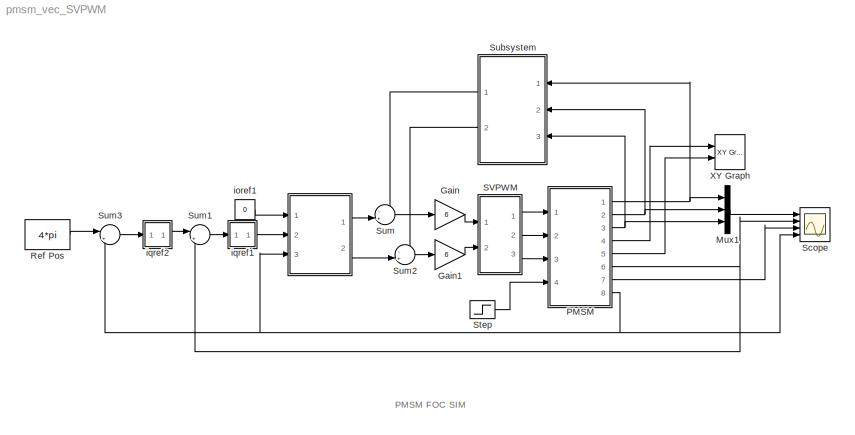
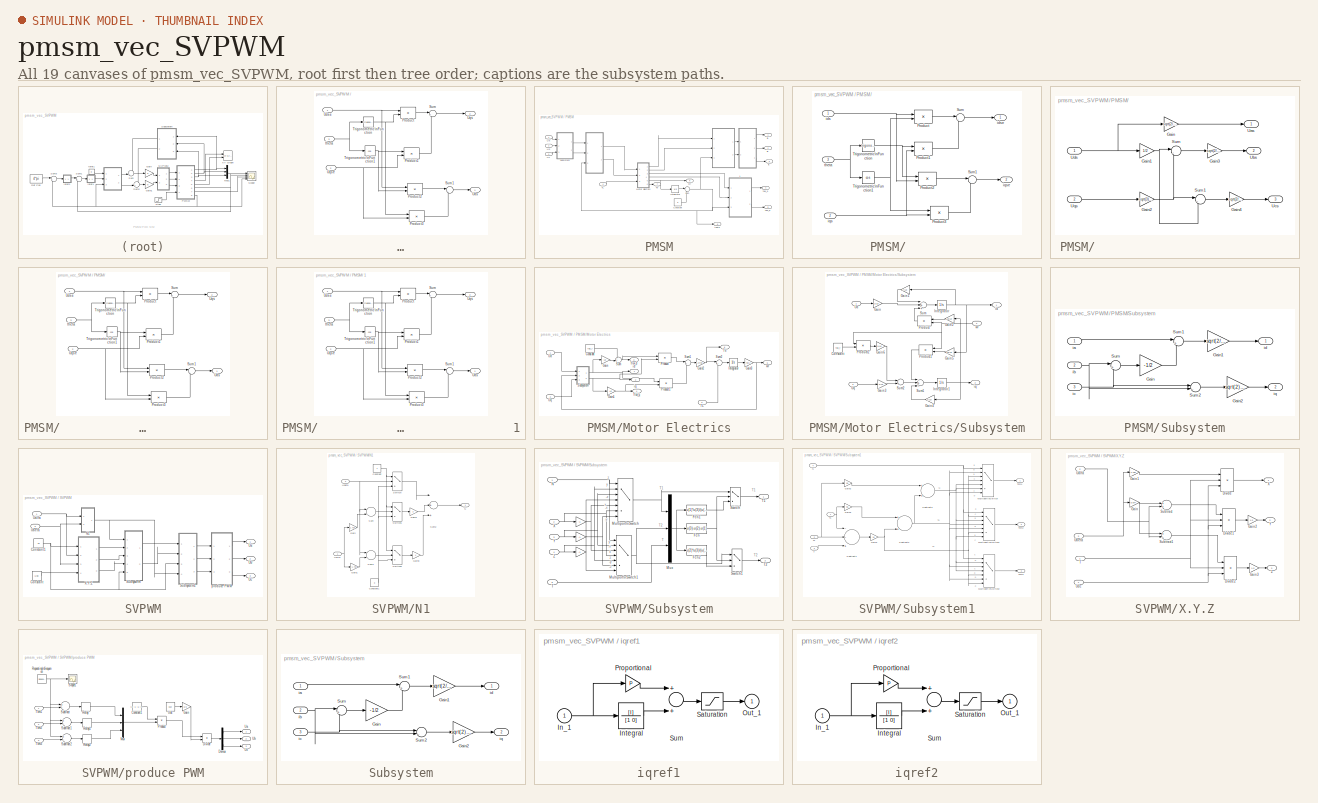
[diagram: thumbnail index - all 19 canvases of the model, root first then tree order]
MODEL pmsm_vec_SVPWM
KIND model
BLOCK [SubSystem]                                       
  FunctionWithSeparateData = off
  MaskDisplay = disp('2r\\n to\\n  2s ');\nport_label('output', 1, '\\itI_a_s','texmode','on');\nport_label('output', 2, '\\itI_b_s','texmode','on');\nport_label('input', 1, '\\itI_{dse}','texmode','on');\nport_label('input', 2, '\\itI_{qse}','texmode','on');\nport_label('input', 3, '\\it\\theta_m','texmode','on');
  MaskHideContents = off
  MaskIconFrame = on
  MaskIconOpaque = on
  MaskIconRotate = none
  MaskIconUnits = autoscale
  MaskPortRotate = default
  MinAlgLoopOccurrences = off
  Opaque = off
  Ports = [3, 2]
  PropExecContextOutsideSubsystem = off
  RTWSystemCode = Auto
  RequestExecContextInheritance = off
  SID = 612
BLOCK [Product]                                       /Product
  InputSameDT = off
  OutDataType = sfix(16)
  OutScaling = 2^0
  Ports = [2, 1]
  RndMeth = Floor
  SID = 616
BLOCK [Product]                                       /Product1
  InputSameDT = off
  OutDataType = sfix(16)
  OutScaling = 2^0
  Ports = [2, 1]
  RndMeth = Floor
  SID = 617
BLOCK [Product]                                       /Product2
  InputSameDT = off
  OutDataType = sfix(16)
  OutScaling = 2^0
  Ports = [2, 1]
  RndMeth = Floor
  SID = 618
BLOCK [Product]                                       /Product3
  InputSameDT = off
  OutDataType = sfix(16)
  OutScaling = 2^0
  Ports = [2, 1]
  RndMeth = Floor
  SID = 619
BLOCK [Sum]                                       /Sum
  IconShape = round
  InputSameDT = off
  Inputs = |++
  OutDataType = sfix(16)
  OutDataTypeMode = Inherit via internal rule
  OutDataTypeStr = Inherit: Inherit via internal rule
  OutScaling = 2^0
  Ports = [2, 1]
  SID = 620
BLOCK [Sum]                                       /Sum1
  IconShape = round
  InputSameDT = off
  Inputs = |+-
  OutDataType = sfix(16)
  OutDataTypeMode = Inherit via internal rule
  OutDataTypeStr = Inherit: Inherit via internal rule
  OutScaling = 2^0
  Ports = [2, 1]
  SID = 621
BLOCK [Trigonometry]                                       /Trigonometric\nFunction
  Ports = [1, 1]
  SID = 622
BLOCK [Trigonometry]                                       /Trigonometric\nFunction1
  Operator = cos
  Ports = [1, 1]
  SID = 623
BLOCK [Outport]                                       /Uds
  IconDisplay = Port number
  SID = 624
BLOCK [Inport]                                       /Udse
  IconDisplay = Port number
  OutDataType = sfix(16)
  OutScaling = 2^0
  SID = 613
BLOCK [Outport]                                       /Uqs
  IconDisplay = Port number
  Port = 2
  SID = 625
BLOCK [Inport]                                       /Uqse
  IconDisplay = Port number
  OutDataType = sfix(16)
  OutScaling = 2^0
  Port = 2
  SID = 614
BLOCK [Inport]                                       /theta
  IconDisplay = Port number
  OutDataType = sfix(16)
  OutScaling = 2^0
  Port = 3
  SID = 615
BLOCK [Gain] Gain
  Gain = 6
  OutDataType = fixdt(1, 16)
  OutDataTypeMode = Inherit via internal rule
  OutDataTypeStr = Inherit: Inherit via internal rule
  OutScaling = 2^0
  ParamDataTypeStr = Inherit: Inherit via internal rule
  ParameterDataType = fixdt(1, 16)
  ParameterDataTypeMode = Inherit via internal rule
  ParameterScaling = 2^0
  SID = 598
  SaturateOnIntegerOverflow = off
BLOCK [Gain] Gain1
  Gain = 6
  OutDataType = fixdt(1, 16)
  OutDataTypeMode = Inherit via internal rule
  OutDataTypeStr = Inherit: Inherit via internal rule
  OutScaling = 2^0
  ParamDataTypeStr = Inherit: Inherit via internal rule
  ParameterDataType = fixdt(1, 16)
  ParameterDataTypeMode = Inherit via internal rule
  ParameterScaling = 2^0
  SID = 599
  SaturateOnIntegerOverflow = off
BLOCK [Mux] Mux1
  DisplayOption = bar
  Inputs = 3
  Ports = [3, 1]
  SID = 569
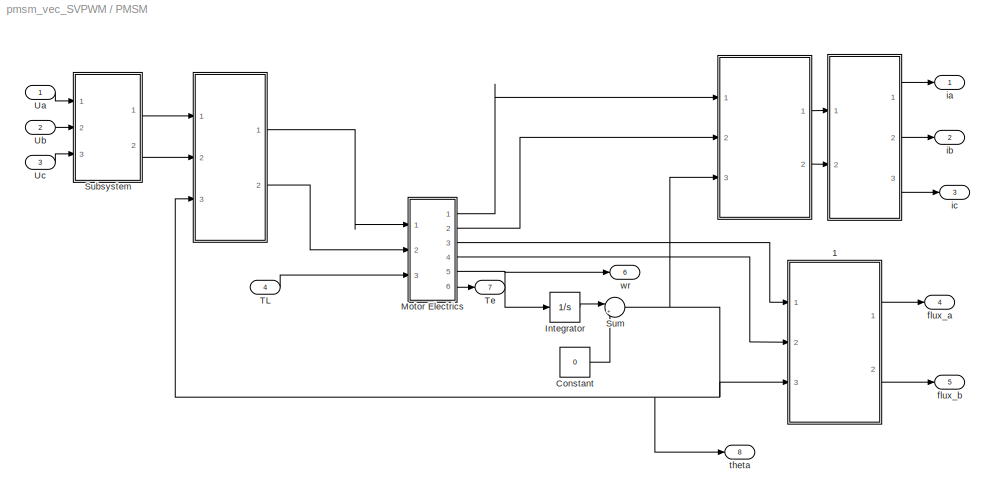
BLOCK [SubSystem] PMSM
  FunctionWithSeparateData = off
  MaskCallbackString = |||||
  MaskEnableString = on,on,on,on,on,on
  MaskHideContents = off
  MaskIconFrame = on
  MaskIconOpaque = on
  MaskIconRotate = none
  MaskIconUnits = autoscale
  MaskPortRotate = default
  MaskPromptString = Ld|Lq|r|flux_r|np|J
  MaskStyleString = edit,edit,edit,edit,edit,edit
  MaskToolTipString = on,on,on,on,on,on
  MaskTunableValueString = on,on,on,on,on,on
  MaskValueString = 8.5e-3|8.5e-3|2.875|0.175|4|0.8e-3
  MaskVariables = Ld=@1;Lq=@2;r=@3;flux_r=@4;np=@5;J=@6;
  MaskVisibilityString = on,on,on,on,on,on
  MinAlgLoopOccurrences = off
  Opaque = off
  Ports = [4, 8]
  PropExecContextOutsideSubsystem = off
  RTWSystemCode = Auto
  RequestExecContextInheritance = off
  SID = 439
BLOCK [SubSystem] PMSM/        
  FunctionWithSeparateData = off
  MaskDisplay = disp('2s\\n to\\n 2r ');\nport_label('output', 1, '\\iti_d_s_e','texmode','on');\nport_label('output', 2, '\\iti_q_s_e','texmode','on');\nport_label('input', 1, '\\iti_{ds}','texmode','on');\nport_label('input', 2, '\\iti_{qs}','texmode','on');\nport_label('input', 3, '\\it\\theta_m','texmode','on');
  MaskHideContents = off
  MaskIconFrame = on
  MaskIconOpaque = on
  MaskIconRotate = none
  MaskIconUnits = autoscale
  MaskPortRotate = default
  MinAlgLoopOccurrences = off
  Opaque = off
  Ports = [3, 2]
  PropExecContextOutsideSubsystem = off
  RTWSystemCode = Auto
  RequestExecContextInheritance = off
  SID = 444
BLOCK [SubSystem] PMSM/                           
  FunctionWithSeparateData = off
  MaskDisplay = disp('2s\\n to \\n 3s ');\nport_label('output', 1, '\\itu_a','texmode','on');\nport_label('output', 2, '\\itu_b','texmode','on');\nport_label('output', 3, '\\itu_c','texmode','on');\nport_label('input', 1, '\\itV_{ds}','texmode','on');\nport_label('input', 2, '\\itV_{qs}','texmode','on');\n
  MaskHideContents = off
  MaskIconFrame = on
  MaskIconOpaque = on
  MaskIconRotate = none
  MaskIconUnits = autoscale
  MaskPortRotate = default
  MinAlgLoopOccurrences = off
  Opaque = off
  Ports = [2, 3]
  PropExecContextOutsideSubsystem = off
  RTWSystemCode = Auto
  RequestExecContextInheritance = off
  SID = 458
BLOCK [SubSystem] PMSM/                                      
  FunctionWithSeparateData = off
  MaskDisplay = disp('2r\\n to\\n  2s ');\nport_label('output', 1, '\\itu_d_s','texmode','on');\nport_label('output', 2, '\\itu_q_s','texmode','on');\nport_label('input', 1, '\\itV_{dse}','texmode','on');\nport_label('input', 2, '\\itV_{qse}','texmode','on');\nport_label('input', 3, '\\it\\theta_m','texmode','on');
  MaskHideContents = off
  MaskIconFrame = on
  MaskIconOpaque = on
  MaskIconRotate = none
  MaskIconUnits = autoscale
  MaskPortRotate = default
  MinAlgLoopOccurrences = off
  Opaque = off
  Ports = [3, 2]
  PropExecContextOutsideSubsystem = off
  RTWSystemCode = Auto
  RequestExecContextInheritance = off
  SID = 471
BLOCK [Product] PMSM/                                      /Product
  InputSameDT = off
  OutDataType = sfix(16)
  OutScaling = 2^0
  Ports = [2, 1]
  RndMeth = Floor
  SID = 475
BLOCK [Product] PMSM/                                      /Product1
  InputSameDT = off
  OutDataType = sfix(16)
  OutScaling = 2^0
  Ports = [2, 1]
  RndMeth = Floor
  SID = 476
BLOCK [Product] PMSM/                                      /Product2
  InputSameDT = off
  OutDataType = sfix(16)
  OutScaling = 2^0
  Ports = [2, 1]
  RndMeth = Floor
  SID = 477
BLOCK [Product] PMSM/                                      /Product3
  InputSameDT = off
  OutDataType = sfix(16)
  OutScaling = 2^0
  Ports = [2, 1]
  RndMeth = Floor
  SID = 478
BLOCK [Sum] PMSM/                                      /Sum
  IconShape = round
  InputSameDT = off
  Inputs = |++
  OutDataType = sfix(16)
  OutDataTypeMode = Inherit via internal rule
  OutDataTypeStr = Inherit: Inherit via internal rule
  OutScaling = 2^0
  Ports = [2, 1]
  SID = 479
BLOCK [Sum] PMSM/                                      /Sum1
  IconShape = round
  InputSameDT = off
  Inputs = |+-
  OutDataType = sfix(16)
  OutDataTypeMode = Inherit via internal rule
  OutDataTypeStr = Inherit: Inherit via internal rule
  OutScaling = 2^0
  Ports = [2, 1]
  SID = 480
BLOCK [Trigonometry] PMSM/                                      /Trigonometric\nFunction
  Ports = [1, 1]
  SID = 481
BLOCK [Trigonometry] PMSM/                                      /Trigonometric\nFunction1
  Operator = cos
  Ports = [1, 1]
  SID = 482
BLOCK [Outport] PMSM/                                      /Uds
  IconDisplay = Port number
  SID = 483
BLOCK [Inport] PMSM/                                      /Udse
  IconDisplay = Port number
  OutDataType = sfix(16)
  OutScaling = 2^0
  SID = 472
BLOCK [Outport] PMSM/                                      /Uqs
  IconDisplay = Port number
  Port = 2
  SID = 484
BLOCK [Inport] PMSM/                                      /Uqse
  IconDisplay = Port number
  OutDataType = sfix(16)
  OutScaling = 2^0
  Port = 2
  SID = 473
BLOCK [Inport] PMSM/                                      /theta
  IconDisplay = Port number
  OutDataType = sfix(16)
  OutScaling = 2^0
  Port = 3
  SID = 474
BLOCK [SubSystem] PMSM/                                      1
  FunctionWithSeparateData = off
  MaskDisplay = disp('2r\\n to\\n  2s ');\nport_label('output', 1, '\\itu_d_s','texmode','on');\nport_label('output', 2, '\\itu_q_s','texmode','on');\nport_label('input', 1, '\\itV_{dse}','texmode','on');\nport_label('input', 2, '\\itV_{qse}','texmode','on');\nport_label('input', 3, '\\it\\theta_m','texmode','on');
  MaskHideContents = off
  MaskIconFrame = on
  MaskIconOpaque = on
  MaskIconRotate = none
  MaskIconUnits = autoscale
  MaskPortRotate = default
  MinAlgLoopOccurrences = off
  Opaque = off
  Ports = [3, 2]
  PropExecContextOutsideSubsystem = off
  RTWSystemCode = Auto
  RequestExecContextInheritance = off
  SID = 485
BLOCK [Product] PMSM/                                      1/Product
  InputSameDT = off
  OutDataType = sfix(16)
  OutScaling = 2^0
  Ports = [2, 1]
  RndMeth = Floor
  SID = 489
BLOCK [Product] PMSM/                                      1/Product1
  InputSameDT = off
  OutDataType = sfix(16)
  OutScaling = 2^0
  Ports = [2, 1]
  RndMeth = Floor
  SID = 490
BLOCK [Product] PMSM/                                      1/Product2
  InputSameDT = off
  OutDataType = sfix(16)
  OutScaling = 2^0
  Ports = [2, 1]
  RndMeth = Floor
  SID = 491
BLOCK [Product] PMSM/                                      1/Product3
  InputSameDT = off
  OutDataType = sfix(16)
  OutScaling = 2^0
  Ports = [2, 1]
  RndMeth = Floor
  SID = 492
BLOCK [Sum] PMSM/                                      1/Sum
  IconShape = round
  InputSameDT = off
  Inputs = |++
  OutDataType = sfix(16)
  OutDataTypeMode = Inherit via internal rule
  OutDataTypeStr = Inherit: Inherit via internal rule
  OutScaling = 2^0
  Ports = [2, 1]
  SID = 493
BLOCK [Sum] PMSM/                                      1/Sum1
  IconShape = round
  InputSameDT = off
  Inputs = |+-
  OutDataType = sfix(16)
  OutDataTypeMode = Inherit via internal rule
  OutDataTypeStr = Inherit: Inherit via internal rule
  OutScaling = 2^0
  Ports = [2, 1]
  SID = 494
BLOCK [Trigonometry] PMSM/                                      1/Trigonometric\nFunction
  Ports = [1, 1]
  SID = 495
BLOCK [Trigonometry] PMSM/                                      1/Trigonometric\nFunction1
  Operator = cos
  Ports = [1, 1]
  SID = 496
BLOCK [Outport] PMSM/                                      1/Uds
  IconDisplay = Port number
  SID = 497
BLOCK [Inport] PMSM/                                      1/Udse
  IconDisplay = Port number
  OutDataType = sfix(16)
  OutScaling = 2^0
  SID = 486
BLOCK [Outport] PMSM/                                      1/Uqs
  IconDisplay = Port number
  Port = 2
  SID = 498
BLOCK [Inport] PMSM/                                      1/Uqse
  IconDisplay = Port number
  OutDataType = sfix(16)
  OutScaling = 2^0
  Port = 2
  SID = 487
BLOCK [Inport] PMSM/                                      1/theta
  IconDisplay = Port number
  OutDataType = sfix(16)
  OutScaling = 2^0
  Port = 3
  SID = 488
BLOCK [Gain] PMSM/                           /Gain
  Gain = sqrt(2/3)
  OutDataType = sfix(16)
  OutScaling = 2^0
  ParameterDataType = sfix(16)
  ParameterScaling = 2^0
  SID = 461
BLOCK [Gain] PMSM/                           /Gain1
  Gain = 1/2
  OutDataType = sfix(16)
  OutScaling = 2^0
  ParameterDataType = sfix(16)
  ParameterScaling = 2^0
  SID = 462
BLOCK [Gain] PMSM/                           /Gain2
  Gain = sqrt(3)/2
  OutDataType = sfix(16)
  OutScaling = 2^0
  ParameterDataType = sfix(16)
  ParameterScaling = 2^0
  SID = 463
BLOCK [Gain] PMSM/                           /Gain3
  Gain = sqrt(2/3)
  OutDataType = sfix(16)
  OutScaling = 2^0
  ParameterDataType = sfix(16)
  ParameterScaling = 2^0
  SID = 464
BLOCK [Gain] PMSM/                           /Gain4
  Gain = sqrt(2/3)
  OutDataType = sfix(16)
  OutScaling = 2^0
  ParameterDataType = sfix(16)
  ParameterScaling = 2^0
  SID = 465
BLOCK [Sum] PMSM/                           /Sum
  IconShape = round
  InputSameDT = off
  Inputs = |-+
  OutDataType = sfix(16)
  OutDataTypeMode = Inherit via internal rule
  OutDataTypeStr = Inherit: Inherit via internal rule
  OutScaling = 2^0
  Ports = [2, 1]
  SID = 466
BLOCK [Sum] PMSM/                           /Sum1
  IconShape = round
  InputSameDT = off
  Inputs = |--
  OutDataType = sfix(16)
  OutDataTypeMode = Inherit via internal rule
  OutDataTypeStr = Inherit: Inherit via internal rule
  OutScaling = 2^0
  Ports = [2, 1]
  SID = 467
BLOCK [Outport] PMSM/                           /Uas
  IconDisplay = Port number
  SID = 468
BLOCK [Outport] PMSM/                           /Ubs
  IconDisplay = Port number
  Port = 2
  SID = 469
BLOCK [Outport] PMSM/                           /Ucs
  IconDisplay = Port number
  Port = 3
  SID = 470
BLOCK [Inport] PMSM/                           /Uds
  IconDisplay = Port number
  OutDataType = sfix(16)
  OutScaling = 2^0
  SID = 459
BLOCK [Inport] PMSM/                           /Uqs
  IconDisplay = Port number
  OutDataType = sfix(16)
  OutScaling = 2^0
  Port = 2
  SID = 460
BLOCK [Product] PMSM/        /Product
  InputSameDT = off
  OutDataType = sfix(16)
  OutScaling = 2^0
  Ports = [2, 1]
  RndMeth = Floor
  SID = 448
BLOCK [Product] PMSM/        /Product1
  InputSameDT = off
  OutDataType = sfix(16)
  OutScaling = 2^0
  Ports = [2, 1]
  RndMeth = Floor
  SID = 449
BLOCK [Product] PMSM/        /Product2
  InputSameDT = off
  OutDataType = sfix(16)
  OutScaling = 2^0
  Ports = [2, 1]
  RndMeth = Floor
  SID = 450
BLOCK [Product] PMSM/        /Product3
  InputSameDT = off
  OutDataType = sfix(16)
  OutScaling = 2^0
  Ports = [2, 1]
  RndMeth = Floor
  SID = 451
BLOCK [Sum] PMSM/        /Sum
  IconShape = round
  InputSameDT = off
  Inputs = |++
  OutDataType = sfix(16)
  OutDataTypeMode = Inherit via internal rule
  OutDataTypeStr = Inherit: Inherit via internal rule
  OutScaling = 2^0
  Ports = [2, 1]
  SID = 452
BLOCK [Sum] PMSM/        /Sum1
  IconShape = round
  InputSameDT = off
  Inputs = |-+
  OutDataType = sfix(16)
  OutDataTypeMode = Inherit via internal rule
  OutDataTypeStr = Inherit: Inherit via internal rule
  OutScaling = 2^0
  Ports = [2, 1]
  SID = 453
BLOCK [Trigonometry] PMSM/        /Trigonometric\nFunction
  Ports = [1, 1]
  SID = 454
BLOCK [Trigonometry] PMSM/        /Trigonometric\nFunction1
  Operator = cos
  Ports = [1, 1]
  SID = 455
BLOCK [Inport] PMSM/        /ids
  IconDisplay = Port number
  OutDataType = sfix(16)
  OutScaling = 2^0
  SID = 445
BLOCK [Outport] PMSM/        /idse
  IconDisplay = Port number
  SID = 456
BLOCK [Inport] PMSM/        /iqs
  IconDisplay = Port number
  OutDataType = sfix(16)
  OutScaling = 2^0
  Port = 2
  SID = 446
BLOCK [Outport] PMSM/        /iqse
  IconDisplay = Port number
  Port = 2
  SID = 457
BLOCK [Inport] PMSM/        /theta
  IconDisplay = Port number
  OutDataType = sfix(16)
  OutScaling = 2^0
  Port = 3
  SID = 447
BLOCK [Constant] PMSM/Constant
  OutDataType = sfix(16)
  OutScaling = 2^0
  SID = 499
  Value = 0
BLOCK [Integrator] PMSM/Integrator
  Ports = [1, 1]
  SID = 500
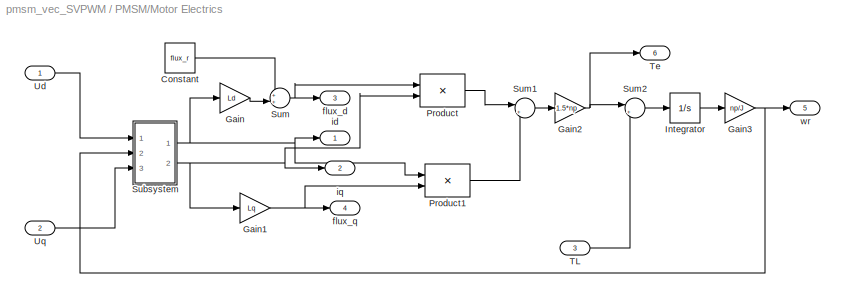
BLOCK [SubSystem] PMSM/Motor Electrics
  FunctionWithSeparateData = off
  MaskHideContents = off
  MinAlgLoopOccurrences = off
  Opaque = off
  Ports = [3, 6]
  PropExecContextOutsideSubsystem = off
  RTWSystemCode = Auto
  RequestExecContextInheritance = off
  SID = 513
BLOCK [Constant] PMSM/Motor Electrics/Constant
  OutDataType = sfix(16)
  OutScaling = 2^0
  SID = 517
  Value = flux_r
BLOCK [Gain] PMSM/Motor Electrics/Gain
  Gain = Ld
  OutDataType = sfix(16)
  OutScaling = 2^0
  ParameterDataType = sfix(16)
  ParameterScaling = 2^0
  SID = 518
BLOCK [Gain] PMSM/Motor Electrics/Gain1
  Gain = Lq
  OutDataType = sfix(16)
  OutScaling = 2^0
  ParameterDataType = sfix(16)
  ParameterScaling = 2^0
  SID = 519
BLOCK [Gain] PMSM/Motor Electrics/Gain2
  Gain = 1.5*np
  OutDataType = sfix(16)
  OutScaling = 2^0
  ParameterDataType = sfix(16)
  ParameterScaling = 2^0
  SID = 520
BLOCK [Gain] PMSM/Motor Electrics/Gain3
  Gain = np/J
  OutDataType = sfix(16)
  OutScaling = 2^0
  ParameterDataType = sfix(16)
  ParameterScaling = 2^0
  SID = 521
BLOCK [Integrator] PMSM/Motor Electrics/Integrator
  Ports = [1, 1]
  SID = 522
BLOCK [Product] PMSM/Motor Electrics/Product
  InputSameDT = off
  OutDataType = sfix(16)
  OutScaling = 2^0
  Ports = [2, 1]
  RndMeth = Floor
  SID = 523
BLOCK [Product] PMSM/Motor Electrics/Product1
  InputSameDT = off
  OutDataType = sfix(16)
  OutScaling = 2^0
  Ports = [2, 1]
  RndMeth = Floor
  SID = 524
BLOCK [SubSystem] PMSM/Motor Electrics/Subsystem
  FunctionWithSeparateData = off
  MaskHideContents = off
  MinAlgLoopOccurrences = off
  Opaque = off
  Ports = [3, 2]
  PropExecContextOutsideSubsystem = off
  RTWSystemCode = Auto
  RequestExecContextInheritance = off
  SID = 527
BLOCK [Constant] PMSM/Motor Electrics/Subsystem/Constant
  OutDataType = sfix(16)
  OutScaling = 2^0
  SID = 531
  Value = flux_r
BLOCK [Gain] PMSM/Motor Electrics/Subsystem/Gain
  Gain = 1/Ld
  OutDataType = sfix(16)
  OutScaling = 2^0
  ParameterDataType = sfix(16)
  ParameterScaling = 2^0
  SID = 532
BLOCK [Gain] PMSM/Motor Electrics/Subsystem/Gain1
  Gain = r/Ld
  OutDataType = sfix(16)
  OutScaling = 2^0
  ParameterDataType = sfix(16)
  ParameterScaling = 2^0
  SID = 533
BLOCK [Gain] PMSM/Motor Electrics/Subsystem/Gain2
  Gain = Lq/Ld
  OutDataType = sfix(16)
  OutScaling = 2^0
  ParameterDataType = sfix(16)
  ParameterScaling = 2^0
  SID = 534
BLOCK [Gain] PMSM/Motor Electrics/Subsystem/Gain3
  Gain = 1/Lq
  OutDataType = sfix(16)
  OutScaling = 2^0
  ParameterDataType = sfix(16)
  ParameterScaling = 2^0
  SID = 535
BLOCK [Gain] PMSM/Motor Electrics/Subsystem/Gain4
  Gain = r/Lq
  OutDataType = sfix(16)
  OutScaling = 2^0
  ParameterDataType = sfix(16)
  ParameterScaling = 2^0
  SID = 536
BLOCK [Gain] PMSM/Motor Electrics/Subsystem/Gain5
  Gain = Ld/Lq
  OutDataType = sfix(16)
  OutScaling = 2^0
  ParameterDataType = sfix(16)
  ParameterScaling = 2^0
  SID = 537
BLOCK [Gain] PMSM/Motor Electrics/Subsystem/Gain6
  Gain = 1/Lq
  OutDataType = sfix(16)
  OutScaling = 2^0
  ParameterDataType = sfix(16)
  ParameterScaling = 2^0
  SID = 538
BLOCK [Integrator] PMSM/Motor Electrics/Subsystem/Integrator
  Ports = [1, 1]
  SID = 539
BLOCK [Integrator] PMSM/Motor Electrics/Subsystem/Integrator1
  Ports = [1, 1]
  SID = 540
BLOCK [Product] PMSM/Motor Electrics/Subsystem/Product
  InputSameDT = off
  OutDataType = sfix(16)
  OutScaling = 2^0
  Ports = [2, 1]
  RndMeth = Floor
  SID = 541
BLOCK [Product] PMSM/Motor Electrics/Subsystem/Product1
  InputSameDT = off
  OutDataType = sfix(16)
  OutScaling = 2^0
  Ports = [2, 1]
  RndMeth = Floor
  SID = 542
BLOCK [Product] PMSM/Motor Electrics/Subsystem/Product2
  InputSameDT = off
  OutDataType = sfix(16)
  OutScaling = 2^0
  Ports = [2, 1]
  RndMeth = Floor
  SID = 543
BLOCK [Sum] PMSM/Motor Electrics/Subsystem/Sum
  InputSameDT = off
  Inputs = -++
  OutDataType = sfix(16)
  OutDataTypeMode = Inherit via internal rule
  OutDataTypeStr = Inherit: Inherit via internal rule
  OutScaling = 2^0
  Ports = [3, 1]
  SID = 544
BLOCK [Sum] PMSM/Motor Electrics/Subsystem/Sum1
  InputSameDT = off
  Inputs = -+-
  OutDataType = sfix(16)
  OutDataTypeMode = Inherit via internal rule
  OutDataTypeStr = Inherit: Inherit via internal rule
  OutScaling = 2^0
  Ports = [3, 1]
  SID = 545
BLOCK [Sum] PMSM/Motor Electrics/Subsystem/Sum2
  InputSameDT = off
  Inputs = -+
  OutDataType = sfix(16)
  OutDataTypeMode = Inherit via internal rule
  OutDataTypeStr = Inherit: Inherit via internal rule
  OutScaling = 2^0
  Ports = [2, 1]
  SID = 546
BLOCK [Inport] PMSM/Motor Electrics/Subsystem/Ud
  IconDisplay = Port number
  OutDataType = sfix(16)
  OutScaling = 2^0
  SID = 528
BLOCK [Inport] PMSM/Motor Electrics/Subsystem/Uq
  IconDisplay = Port number
  OutDataType = sfix(16)
  OutScaling = 2^0
  Port = 3
  SID = 530
BLOCK [Outport] PMSM/Motor Electrics/Subsystem/id
  IconDisplay = Port number
  SID = 547
BLOCK [Outport] PMSM/Motor Electrics/Subsystem/iq
  IconDisplay = Port number
  Port = 2
  SID = 548
BLOCK [Inport] PMSM/Motor Electrics/Subsystem/wr
  IconDisplay = Port number
  OutDataType = sfix(16)
  OutScaling = 2^0
  Port = 2
  SID = 529
BLOCK [Sum] PMSM/Motor Electrics/Sum
  IconShape = round
  InputSameDT = off
  Inputs = ++|
  OutDataType = sfix(16)
  OutDataTypeMode = Inherit via internal rule
  OutDataTypeStr = Inherit: Inherit via internal rule
  OutScaling = 2^0
  Ports = [2, 1]
  SID = 549
BLOCK [Sum] PMSM/Motor Electrics/Sum1
  IconShape = round
  InputSameDT = off
  Inputs = |+-
  OutDataType = sfix(16)
  OutDataTypeMode = Inherit via internal rule
  OutDataTypeStr = Inherit: Inherit via internal rule
  OutScaling = 2^0
  Ports = [2, 1]
  SID = 550
BLOCK [Sum] PMSM/Motor Electrics/Sum2
  IconShape = round
  InputSameDT = off
  Inputs = |+-
  OutDataType = sfix(16)
  OutDataTypeMode = Inherit via internal rule
  OutDataTypeStr = Inherit: Inherit via internal rule
  OutScaling = 2^0
  Ports = [2, 1]
  SID = 551
BLOCK [Inport] PMSM/Motor Electrics/TL
  IconDisplay = Port number
  OutDataType = sfix(16)
  OutScaling = 2^0
  Port = 3
  SID = 516
BLOCK [Outport] PMSM/Motor Electrics/Te
  IconDisplay = Port number
  Port = 6
  SID = 557
BLOCK [Inport] PMSM/Motor Electrics/Ud
  IconDisplay = Port number
  OutDataType = sfix(16)
  OutScaling = 2^0
  SID = 514
BLOCK [Inport] PMSM/Motor Electrics/Uq
  IconDisplay = Port number
  OutDataType = sfix(16)
  OutScaling = 2^0
  Port = 2
  SID = 515
BLOCK [Outport] PMSM/Motor Electrics/flux_d
  IconDisplay = Port number
  Port = 3
  SID = 554
BLOCK [Outport] PMSM/Motor Electrics/flux_q
  IconDisplay = Port number
  Port = 4
  SID = 555
BLOCK [Outport] PMSM/Motor Electrics/id
  IconDisplay = Port number
  SID = 552
BLOCK [Outport] PMSM/Motor Electrics/iq
  IconDisplay = Port number
  Port = 2
  SID = 553
BLOCK [Outport] PMSM/Motor Electrics/wr
  IconDisplay = Port number
  Port = 5
  SID = 556
BLOCK [SubSystem] PMSM/Subsystem
  FunctionWithSeparateData = off
  MaskDisplay = disp('3s\\n to\\n 2s ');\nport_label('output', 1, '\\iti_d_s','texmode','on');\nport_label('output', 2, '\\iti_q_s','texmode','on');\nport_label('input', 1, '\\iti_{as}','texmode','on');\nport_label('input', 2, '\\iti_{bs}','texmode','on');\nport_label('input', 3, '\\iti_{cs}','texmode','on');
  MaskHideContents = off
  MaskIconFrame = on
  MaskIconOpaque = on
  MaskIconRotate = none
  MaskIconUnits = autoscale
  MaskPortRotate = default
  MinAlgLoopOccurrences = off
  Opaque = off
  Ports = [3, 2]
  PropExecContextOutsideSubsystem = off
  RTWSystemCode = Auto
  RequestExecContextInheritance = off
  SID = 501
BLOCK [Gain] PMSM/Subsystem/Gain
  Gain = -1/2
  OutDataType = sfix(16)
  OutScaling = 2^0
  ParameterDataType = sfix(16)
  ParameterScaling = 2^0
  SID = 505
BLOCK [Gain] PMSM/Subsystem/Gain1
  Gain = sqrt(2/3)
  OutDataType = sfix(16)
  OutScaling = 2^0
  ParameterDataType = sfix(16)
  ParameterScaling = 2^0
  SID = 506
BLOCK [Gain] PMSM/Subsystem/Gain2
  Gain = sqrt(2)/2
  OutDataType = sfix(16)
  OutScaling = 2^0
  ParameterDataType = sfix(16)
  ParameterScaling = 2^0
  SID = 507
BLOCK [Sum] PMSM/Subsystem/Sum
  IconShape = round
  InputSameDT = off
  Inputs = |++
  OutDataType = sfix(16)
  OutDataTypeMode = Inherit via internal rule
  OutDataTypeStr = Inherit: Inherit via internal rule
  OutScaling = 2^0
  Ports = [2, 1]
  SID = 508
BLOCK [Sum] PMSM/Subsystem/Sum1
  IconShape = round
  InputSameDT = off
  Inputs = |++
  OutDataType = sfix(16)
  OutDataTypeMode = Inherit via internal rule
  OutDataTypeStr = Inherit: Inherit via internal rule
  OutScaling = 2^0
  Ports = [2, 1]
  SID = 509
BLOCK [Sum] PMSM/Subsystem/Sum2
  IconShape = round
  InputSameDT = off
  Inputs = |-+
  OutDataType = sfix(16)
  OutDataTypeMode = Inherit via internal rule
  OutDataTypeStr = Inherit: Inherit via internal rule
  OutScaling = 2^0
  Ports = [2, 1]
  SID = 510
BLOCK [Inport] PMSM/Subsystem/ia
  IconDisplay = Port number
  OutDataType = sfix(16)
  OutScaling = 2^0
  SID = 502
BLOCK [Inport] PMSM/Subsystem/ib
  IconDisplay = Port number
  OutDataType = sfix(16)
  OutScaling = 2^0
  Port = 2
  SID = 503
BLOCK [Inport] PMSM/Subsystem/ic
  IconDisplay = Port number
  OutDataType = sfix(16)
  OutScaling = 2^0
  Port = 3
  SID = 504
BLOCK [Outport] PMSM/Subsystem/id
  IconDisplay = Port number
  SID = 511
BLOCK [Outport] PMSM/Subsystem/iq	
  IconDisplay = Port number
  Port = 2
  SID = 512
BLOCK [Sum] PMSM/Sum
  IconShape = round
  InputSameDT = off
  Inputs = |++
  OutDataType = sfix(16)
  OutDataTypeMode = Inherit via internal rule
  OutDataTypeStr = Inherit: Inherit via internal rule
  OutScaling = 2^0
  Ports = [2, 1]
  SID = 558
BLOCK [Inport] PMSM/TL
  IconDisplay = Port number
  OutDataType = sfix(16)
  OutScaling = 2^0
  Port = 4
  SID = 443
BLOCK [Outport] PMSM/Te
  IconDisplay = Port number
  Port = 7
  SID = 565
BLOCK [Inport] PMSM/Ua
  IconDisplay = Port number
  OutDataType = sfix(16)
  OutScaling = 2^0
  SID = 440
BLOCK [Inport] PMSM/Ub
  IconDisplay = Port number
  OutDataType = sfix(16)
  OutScaling = 2^0
  Port = 2
  SID = 441
BLOCK [Inport] PMSM/Uc
  IconDisplay = Port number
  OutDataType = sfix(16)
  OutScaling = 2^0
  Port = 3
  SID = 442
BLOCK [Outport] PMSM/flux_a
  IconDisplay = Port number
  Port = 4
  SID = 562
BLOCK [Outport] PMSM/flux_b
  IconDisplay = Port number
  Port = 5
  SID = 563
BLOCK [Outport] PMSM/ia
  IconDisplay = Port number
  SID = 559
BLOCK [Outport] PMSM/ib
  IconDisplay = Port number
  Port = 2
  SID = 560
BLOCK [Outport] PMSM/ic
  IconDisplay = Port number
  Port = 3
  SID = 561
BLOCK [Outport] PMSM/theta
  IconDisplay = Port number
  Port = 8
  SID = 566
BLOCK [Outport] PMSM/wr
  IconDisplay = Port number
  Port = 6
  SID = 564
BLOCK [Constant] Ref Pos
  OutDataType = sfix(16)
  OutScaling = 2^0
  SID = 651
  Value = 4*pi
BLOCK [SubSystem] SVPWM
  FunctionWithSeparateData = off
  MaskCallbackString = |
  MaskEnableString = on,on
  MaskHideContents = off
  MaskIconFrame = on
  MaskIconOpaque = on
  MaskIconRotate = none
  MaskIconUnits = autoscale
  MaskPortRotate = default
  MaskPromptString = Period of PWM(Ts):|Voltage of DC(Udc):
  MaskStyleString = edit,edit
  MaskToolTipString = on,on
  MaskTunableValueString = on,on
  MaskValueString = 0.00005|310
  MaskVariables = Ts=@1;Udc=@2;
  MaskVisibilityString = on,on
  MinAlgLoopOccurrences = off
  Opaque = off
  Ports = [2, 3]
  PropExecContextOutsideSubsystem = off
  RTWSystemCode = Auto
  RequestExecContextInheritance = off
  SID = 281
BLOCK [Constant] SVPWM/Constant
  OutDataType = sfix(16)
  OutScaling = 2^0
  SID = 284
  Value = Udc
BLOCK [Constant] SVPWM/Constant1
  OutDataType = sfix(16)
  OutScaling = 2^0
  SID = 285
  Value = Ts
BLOCK [SubSystem] SVPWM/N1
  FunctionWithSeparateData = off
  MaskHideContents = off
  MinAlgLoopOccurrences = off
  Opaque = off
  Ports = [2, 1]
  PropExecContextOutsideSubsystem = off
  RTWSystemCode = Auto
  RequestExecContextInheritance = off
  SID = 286
BLOCK [Constant] SVPWM/N1/Constant
  OutDataType = sfix(16)
  OutScaling = 2^0
  SID = 289
BLOCK [Constant] SVPWM/N1/Constant1
  OutDataType = sfix(16)
  OutScaling = 2^0
  SID = 290
  Value = 0
BLOCK [Gain] SVPWM/N1/Gain
  Gain = 1.732
  OutDataType = sfix(16)
  OutDataTypeMode = Inherit via internal rule
  OutDataTypeStr = Inherit: Inherit via internal rule
  OutScaling = 2^0
  ParamDataTypeStr = Inherit: Inherit via internal rule
  ParameterDataType = sfix(16)
  ParameterDataTypeMode = Inherit via internal rule
  ParameterScaling = 2^0
  SID = 291
  SaturateOnIntegerOverflow = off
BLOCK [Gain] SVPWM/N1/Gain1
  Gain = -1.732
  OutDataType = sfix(16)
  OutDataTypeMode = Inherit via internal rule
  OutDataTypeStr = Inherit: Inherit via internal rule
  OutScaling = 2^0
  ParamDataTypeStr = Inherit: Inherit via internal rule
  ParameterDataType = sfix(16)
  ParameterDataTypeMode = Inherit via internal rule
  ParameterScaling = 2^0
  SID = 292
  SaturateOnIntegerOverflow = off
BLOCK [Gain] SVPWM/N1/Gain2
  Gain = 2
  OutDataType = sfix(16)
  OutDataTypeMode = Inherit via internal rule
  OutDataTypeStr = Inherit: Inherit via internal rule
  OutScaling = 2^0
  ParamDataTypeStr = Inherit: Inherit via internal rule
  ParameterDataType = sfix(16)
  ParameterDataTypeMode = Inherit via internal rule
  ParameterScaling = 2^0
  SID = 293
  SaturateOnIntegerOverflow = off
BLOCK [Gain] SVPWM/N1/Gain3
  Gain = 4
  OutDataType = sfix(16)
  OutDataTypeMode = Inherit via internal rule
  OutDataTypeStr = Inherit: Inherit via internal rule
  OutScaling = 2^0
  ParamDataTypeStr = Inherit: Inherit via internal rule
  ParameterDataType = sfix(16)
  ParameterDataTypeMode = Inherit via internal rule
  ParameterScaling = 2^0
  SID = 294
  SaturateOnIntegerOverflow = off
BLOCK [Outport] SVPWM/N1/N
  IconDisplay = Port number
  OutDataType = sfix(16)
  OutScaling = 2^0
  SID = 301
BLOCK [Sum] SVPWM/N1/Sum
  InputSameDT = off
  Inputs = |-+
  OutDataType = sfix(16)
  OutDataTypeMode = Inherit via internal rule
  OutDataTypeStr = Inherit: Inherit via internal rule
  OutScaling = 2^0
  Ports = [2, 1]
  SID = 295
  SaturateOnIntegerOverflow = off
BLOCK [Sum] SVPWM/N1/Sum1
  InputSameDT = off
  Inputs = |-+
  OutDataType = sfix(16)
  OutDataTypeMode = Inherit via internal rule
  OutDataTypeStr = Inherit: Inherit via internal rule
  OutScaling = 2^0
  Ports = [2, 1]
  SID = 296
  SaturateOnIntegerOverflow = off
BLOCK [Sum] SVPWM/N1/Sum2
  InputSameDT = off
  Inputs = |+++
  OutDataType = sfix(16)
  OutDataTypeMode = Inherit via internal rule
  OutDataTypeStr = Inherit: Inherit via internal rule
  OutScaling = 2^0
  Ports = [3, 1]
  SID = 297
  SaturateOnIntegerOverflow = off
BLOCK [Switch] SVPWM/N1/Switch
  InputSameDT = off
  SID = 298
  SaturateOnIntegerOverflow = off
  ZeroCross = off
BLOCK [Switch] SVPWM/N1/Switch1
  InputSameDT = off
  SID = 299
  SaturateOnIntegerOverflow = off
  ZeroCross = off
BLOCK [Switch] SVPWM/N1/Switch2
  InputSameDT = off
  SID = 300
  SaturateOnIntegerOverflow = off
  ZeroCross = off
BLOCK [Inport] SVPWM/N1/Ualfa
  IconDisplay = Port number
  OutDataType = sfix(16)
  OutScaling = 2^0
  SID = 287
BLOCK [Inport] SVPWM/N1/Ubeta
  IconDisplay = Port number
  OutDataType = sfix(16)
  OutScaling = 2^0
  Port = 2
  SID = 288
BLOCK [SubSystem] SVPWM/Subsystem
  FunctionWithSeparateData = off
  MaskHideContents = off
  MinAlgLoopOccurrences = off
  Opaque = off
  Ports = [5, 2]
  PropExecContextOutsideSubsystem = off
  RTWSystemCode = Auto
  RequestExecContextInheritance = off
  SID = 306
BLOCK [Gain] SVPWM/Subsystem/ 
  Gain = -1
  OutDataType = sfix(16)
  OutDataTypeMode = Inherit via internal rule
  OutDataTypeStr = Inherit: Inherit via internal rule
  OutScaling = 2^0
  ParamDataTypeStr = Inherit: Inherit via internal rule
  ParameterDataType = sfix(16)
  ParameterDataTypeMode = Inherit via internal rule
  ParameterScaling = 2^0
  SID = 312
  SaturateOnIntegerOverflow = off
BLOCK [Gain] SVPWM/Subsystem/  
  Gain = -1
  OutDataType = sfix(16)
  OutDataTypeMode = Inherit via internal rule
  OutDataTypeStr = Inherit: Inherit via internal rule
  OutScaling = 2^0
  ParamDataTypeStr = Inherit: Inherit via internal rule
  ParameterDataType = sfix(16)
  ParameterDataTypeMode = Inherit via internal rule
  ParameterScaling = 2^0
  SID = 313
  SaturateOnIntegerOverflow = off
BLOCK [Gain] SVPWM/Subsystem/    
  Gain = -1
  OutDataType = sfix(16)
  OutDataTypeMode = Inherit via internal rule
  OutDataTypeStr = Inherit: Inherit via internal rule
  OutScaling = 2^0
  ParamDataTypeStr = Inherit: Inherit via internal rule
  ParameterDataType = sfix(16)
  ParameterDataTypeMode = Inherit via internal rule
  ParameterScaling = 2^0
  SID = 314
  SaturateOnIntegerOverflow = off
BLOCK [Fcn] SVPWM/Subsystem/Fcn
  Expr = u(3)-u(2)-u(1)
  SID = 316
BLOCK [Fcn] SVPWM/Subsystem/Fcn1
  Expr = u(1)*u(3)/(u(1)+u(2))
  SID = 317
BLOCK [Fcn] SVPWM/Subsystem/Fcn2
  Expr = u(2)*u(3)/(u(1)+u(2))
  SID = 318
BLOCK [MultiPortSwitch] SVPWM/Subsystem/Multiport\nSwitch
  InputSameDT = off
  Inputs = 6
  Ports = [7, 1]
  SID = 319
  SaturateOnIntegerOverflow = off
BLOCK [MultiPortSwitch] SVPWM/Subsystem/Multiport\nSwitch1
  InputSameDT = off
  Inputs = 6
  Ports = [7, 1]
  SID = 320
  SaturateOnIntegerOverflow = off
BLOCK [Mux] SVPWM/Subsystem/Mux
  DisplayOption = bar
  Inputs = 3
  Ports = [3, 1]
  SID = 321
BLOCK [Inport] SVPWM/Subsystem/N
  IconDisplay = Port number
  OutDataType = sfix(16)
  OutScaling = 2^0
  SID = 307
BLOCK [Switch] SVPWM/Subsystem/Switch
  InputSameDT = off
  SID = 323
  SaturateOnIntegerOverflow = off
BLOCK [Switch] SVPWM/Subsystem/Switch1
  Criteria = u2 > Threshold
  InputSameDT = off
  SID = 324
  SaturateOnIntegerOverflow = off
BLOCK [Inport] SVPWM/Subsystem/T
  IconDisplay = Port number
  OutDataType = sfix(16)
  OutScaling = 2^0
  Port = 5
  SID = 311
BLOCK [Outport] SVPWM/Subsystem/T1
  IconDisplay = Port number
  OutDataType = sfix(16)
  OutScaling = 2^0
  SID = 325
BLOCK [Outport] SVPWM/Subsystem/T2
  IconDisplay = Port number
  OutDataType = sfix(16)
  OutScaling = 2^0
  Port = 2
  SID = 326
BLOCK [Inport] SVPWM/Subsystem/X
  IconDisplay = Port number
  OutDataType = sfix(16)
  OutScaling = 2^0
  Port = 2
  SID = 308
BLOCK [Inport] SVPWM/Subsystem/Y
  IconDisplay = Port number
  OutDataType = sfix(16)
  OutScaling = 2^0
  Port = 3
  SID = 309
BLOCK [Inport] SVPWM/Subsystem/Z
  IconDisplay = Port number
  OutDataType = sfix(16)
  OutScaling = 2^0
  Port = 4
  SID = 310
BLOCK [SubSystem] SVPWM/Subsystem1
  FunctionWithSeparateData = off
  MaskHideContents = off
  MinAlgLoopOccurrences = off
  Opaque = off
  Ports = [4, 3]
  PropExecContextOutsideSubsystem = off
  RTWSystemCode = Auto
  RequestExecContextInheritance = off
  SID = 327
BLOCK [Gain] SVPWM/Subsystem1/Gain1
  Gain = 1/4
  OutDataType = sfix(16)
  OutDataTypeMode = Inherit via internal rule
  OutDataTypeStr = Inherit: Inherit via internal rule
  OutScaling = 2^0
  ParamDataTypeStr = Inherit: Inherit via internal rule
  ParameterDataType = sfix(16)
  ParameterDataTypeMode = Inherit via internal rule
  ParameterScaling = 2^0
  SID = 332
  SaturateOnIntegerOverflow = off
BLOCK [Gain] SVPWM/Subsystem1/Gain2
  Gain = 0.5
  OutDataType = sfix(16)
  OutDataTypeMode = Inherit via internal rule
  OutDataTypeStr = Inherit: Inherit via internal rule
  OutScaling = 2^0
  ParamDataTypeStr = Inherit: Inherit via internal rule
  ParameterDataType = sfix(16)
  ParameterDataTypeMode = Inherit via internal rule
  ParameterScaling = 2^0
  SID = 333
  SaturateOnIntegerOverflow = off
BLOCK [Gain] SVPWM/Subsystem1/Gain3
  Gain = 0.5
  OutDataType = sfix(16)
  OutDataTypeMode = Inherit via internal rule
  OutDataTypeStr = Inherit: Inherit via internal rule
  OutScaling = 2^0
  ParamDataTypeStr = Inherit: Inherit via internal rule
  ParameterDataType = sfix(16)
  ParameterDataTypeMode = Inherit via internal rule
  ParameterScaling = 2^0
  SID = 334
  SaturateOnIntegerOverflow = off
BLOCK [MultiPortSwitch] SVPWM/Subsystem1/Multiport\nSwitch
  InputSameDT = off
  Inputs = 6
  Ports = [7, 1]
  SID = 335
  SaturateOnIntegerOverflow = off
BLOCK [MultiPortSwitch] SVPWM/Subsystem1/Multiport\nSwitch1
  InputSameDT = off
  Inputs = 6
  Ports = [7, 1]
  SID = 336
  SaturateOnIntegerOverflow = off
BLOCK [MultiPortSwitch] SVPWM/Subsystem1/Multiport\nSwitch2
  InputSameDT = off
  Inputs = 6
  Ports = [7, 1]
  SID = 337
  SaturateOnIntegerOverflow = off
BLOCK [Inport] SVPWM/Subsystem1/N
  IconDisplay = Port number
  OutDataType = sfix(16)
  OutScaling = 2^0
  Port = 4
  SID = 331
BLOCK [Sum] SVPWM/Subsystem1/Subtract1
  InputSameDT = off
  Inputs = --+
  OutDataType = sfix(16)
  OutDataTypeMode = Inherit via internal rule
  OutDataTypeStr = Inherit: Inherit via internal rule
  OutScaling = 2^-10
  Ports = [3, 1]
  SID = 338
  SaturateOnIntegerOverflow = off
BLOCK [Sum] SVPWM/Subsystem1/Subtract2
  InputSameDT = off
  OutDataType = sfix(16)
  OutDataTypeMode = Inherit via internal rule
  OutDataTypeStr = Inherit: Inherit via internal rule
  OutScaling = 2^-10
  Ports = [2, 1]
  SID = 339
  SaturateOnIntegerOverflow = off
BLOCK [Sum] SVPWM/Subsystem1/Subtract3
  InputSameDT = off
  OutDataType = sfix(16)
  OutDataTypeMode = Inherit via internal rule
  OutDataTypeStr = Inherit: Inherit via internal rule
  OutScaling = 2^-10
  Ports = [2, 1]
  SID = 340
  SaturateOnIntegerOverflow = off
BLOCK [Inport] SVPWM/Subsystem1/T
  IconDisplay = Port number
  OutDataType = sfix(16)
  OutScaling = 2^0
  Port = 3
  SID = 330
BLOCK [Inport] SVPWM/Subsystem1/T1
  IconDisplay = Port number
  OutDataType = sfix(16)
  OutScaling = 2^0
  SID = 328
BLOCK [Inport] SVPWM/Subsystem1/T2
  IconDisplay = Port number
  OutDataType = sfix(16)
  OutScaling = 2^0
  Port = 2
  SID = 329
BLOCK [Outport] SVPWM/Subsystem1/Tcm1
  IconDisplay = Port number
  OutDataType = sfix(16)
  OutScaling = 2^0
  SID = 341
BLOCK [Outport] SVPWM/Subsystem1/Tcm2
  IconDisplay = Port number
  OutDataType = sfix(16)
  OutScaling = 2^0
  Port = 2
  SID = 342
BLOCK [Outport] SVPWM/Subsystem1/Tcm3
  IconDisplay = Port number
  OutDataType = sfix(16)
  OutScaling = 2^0
  Port = 3
  SID = 343
BLOCK [Outport] SVPWM/Ua
  IconDisplay = Port number
  OutDataType = sfix(16)
  OutScaling = 2^0
  SID = 437
BLOCK [Inport] SVPWM/Ualfa
  IconDisplay = Port number
  OutDataType = sfix(16)
  OutScaling = 2^0
  SID = 282
BLOCK [Outport] SVPWM/Ub
  IconDisplay = Port number
  OutDataType = sfix(16)
  OutScaling = 2^0
  Port = 2
  SID = 381
BLOCK [Inport] SVPWM/Ubeta
  IconDisplay = Port number
  OutDataType = sfix(16)
  OutScaling = 2^0
  Port = 2
  SID = 283
BLOCK [Outport] SVPWM/Uc
  IconDisplay = Port number
  OutDataType = sfix(16)
  OutScaling = 2^0
  Port = 3
  SID = 438
BLOCK [SubSystem] SVPWM/X.Y.Z
  FunctionWithSeparateData = off
  MaskHideContents = off
  MinAlgLoopOccurrences = off
  Opaque = off
  Ports = [4, 3]
  PropExecContextOutsideSubsystem = off
  RTWSystemCode = Auto
  RequestExecContextInheritance = off
  SID = 344
BLOCK [Product] SVPWM/X.Y.Z/Divide
  InputSameDT = off
  Inputs = **/
  OutDataType = sfix(16)
  OutDataTypeMode = Inherit via internal rule
  OutDataTypeStr = Inherit: Inherit via internal rule
  OutScaling = 2^-10
  Ports = [3, 1]
  RndMeth = Floor
  SID = 349
  SaturateOnIntegerOverflow = off
BLOCK [Product] SVPWM/X.Y.Z/Divide1
  InputSameDT = off
  Inputs = **/
  OutDataType = sfix(16)
  OutDataTypeMode = Inherit via internal rule
  OutDataTypeStr = Inherit: Inherit via internal rule
  OutScaling = 2^-10
  Ports = [3, 1]
  RndMeth = Floor
  SID = 350
  SaturateOnIntegerOverflow = off
BLOCK [Product] SVPWM/X.Y.Z/Divide2
  InputSameDT = off
  Inputs = **/
  OutDataType = sfix(16)
  OutDataTypeMode = Inherit via internal rule
  OutDataTypeStr = Inherit: Inherit via internal rule
  OutScaling = 2^-10
  Ports = [3, 1]
  RndMeth = Floor
  SID = 351
  SaturateOnIntegerOverflow = off
BLOCK [Gain] SVPWM/X.Y.Z/Gain
  Gain = 0.577
  OutDataType = sfix(16)
  OutDataTypeMode = Inherit via internal rule
  OutDataTypeStr = Inherit: Inherit via internal rule
  OutScaling = 2^0
  ParamDataTypeStr = Inherit: Inherit via internal rule
  ParameterDataType = sfix(16)
  ParameterDataTypeMode = Inherit via internal rule
  ParameterScaling = 2^0
  SID = 352
  SaturateOnIntegerOverflow = off
BLOCK [Gain] SVPWM/X.Y.Z/Gain1
  Gain = 1.732
  OutDataType = sfix(16)
  OutDataTypeMode = Inherit via internal rule
  OutDataTypeStr = Inherit: Inherit via internal rule
  OutScaling = 2^0
  ParamDataTypeStr = Inherit: Inherit via internal rule
  ParameterDataType = sfix(16)
  ParameterDataTypeMode = Inherit via internal rule
  ParameterScaling = 2^0
  SID = 353
  SaturateOnIntegerOverflow = off
BLOCK [Gain] SVPWM/X.Y.Z/Gain2
  Gain = 1.5
  OutDataType = sfix(16)
  OutDataTypeMode = Inherit via internal rule
  OutDataTypeStr = Inherit: Inherit via internal rule
  OutScaling = 2^0
  ParamDataTypeStr = Inherit: Inherit via internal rule
  ParameterDataType = sfix(16)
  ParameterDataTypeMode = Inherit via internal rule
  ParameterScaling = 2^0
  SID = 354
  SaturateOnIntegerOverflow = off
BLOCK [Gain] SVPWM/X.Y.Z/Gain3
  Gain = 1.5
  OutDataType = sfix(16)
  OutDataTypeMode = Inherit via internal rule
  OutDataTypeStr = Inherit: Inherit via internal rule
  OutScaling = 2^0
  ParamDataTypeStr = Inherit: Inherit via internal rule
  ParameterDataType = sfix(16)
  ParameterDataTypeMode = Inherit via internal rule
  ParameterScaling = 2^0
  SID = 355
  SaturateOnIntegerOverflow = off
BLOCK [Sum] SVPWM/X.Y.Z/Subtract
  InputSameDT = off
  OutDataType = sfix(16)
  OutDataTypeMode = Inherit via internal rule
  OutDataTypeStr = Inherit: Inherit via internal rule
  OutScaling = 2^-10
  Ports = [2, 1]
  SID = 356
  SaturateOnIntegerOverflow = off
BLOCK [Sum] SVPWM/X.Y.Z/Subtract1
  InputSameDT = off
  Inputs = +-
  OutDataType = sfix(16)
  OutDataTypeMode = Inherit via internal rule
  OutDataTypeStr = Inherit: Inherit via internal rule
  OutScaling = 2^-10
  Ports = [2, 1]
  SID = 357
  SaturateOnIntegerOverflow = off
BLOCK [Inport] SVPWM/X.Y.Z/T
  IconDisplay = Port number
  OutDataType = sfix(16)
  OutScaling = 2^0
  SID = 345
BLOCK [Inport] SVPWM/X.Y.Z/Ualfa
  IconDisplay = Port number
  OutDataType = sfix(16)
  OutScaling = 2^0
  Port = 2
  SID = 346
BLOCK [Inport] SVPWM/X.Y.Z/Ubeta
  IconDisplay = Port number
  OutDataType = sfix(16)
  OutScaling = 2^0
  Port = 3
  SID = 347
BLOCK [Inport] SVPWM/X.Y.Z/Udc
  IconDisplay = Port number
  OutDataType = sfix(16)
  OutScaling = 2^0
  Port = 4
  SID = 348
BLOCK [Outport] SVPWM/X.Y.Z/X
  IconDisplay = Port number
  OutDataType = sfix(16)
  OutScaling = 2^0
  SID = 358
BLOCK [Outport] SVPWM/X.Y.Z/Y
  IconDisplay = Port number
  OutDataType = sfix(16)
  OutScaling = 2^0
  Port = 2
  SID = 359
BLOCK [Outport] SVPWM/X.Y.Z/Z
  IconDisplay = Port number
  OutDataType = sfix(16)
  OutScaling = 2^0
  Port = 3
  SID = 360
BLOCK [SubSystem] SVPWM/produce PWM
  FunctionWithSeparateData = off
  MaskHideContents = off
  MinAlgLoopOccurrences = off
  Opaque = off
  Ports = [3, 3]
  PropExecContextOutsideSubsystem = off
  RTWSystemCode = Auto
  RequestExecContextInheritance = off
  SID = 361
BLOCK [Constant] SVPWM/produce PWM/Constant1
  OutDataType = fixdt(1, 16)
  OutScaling = 2^0
  SID = 427
  Value = [2 -1 -1;-1 2 -1;-1 -1 2]
BLOCK [Demux] SVPWM/produce PWM/Demux
  DisplayOption = bar
  Outputs = 3
  Ports = [1, 3]
  SID = 428
BLOCK [Product] SVPWM/produce PWM/Divide
  InputSameDT = off
  Inputs = **
  OutDataType = fixdt(1, 16)
  OutDataTypeMode = Inherit via internal rule
  OutDataTypeStr = Inherit: Inherit via internal rule
  OutScaling = 2^-10
  Ports = [2, 1]
  RndMeth = Floor
  SID = 429
  SaturateOnIntegerOverflow = off
BLOCK [Gain] SVPWM/produce PWM/Gain
  Gain = 1/3
  OutDataType = fixdt(1, 16)
  OutDataTypeMode = Inherit via internal rule
  OutDataTypeStr = Inherit: Inherit via internal rule
  OutScaling = 2^0
  ParamDataTypeStr = Inherit: Inherit via internal rule
  ParameterDataType = fixdt(1, 16)
  ParameterDataTypeMode = Inherit via internal rule
  ParameterScaling = 2^0
  SID = 430
  SaturateOnIntegerOverflow = off
BLOCK [Mux] SVPWM/produce PWM/Mux
  DisplayOption = bar
  Inputs = 3
  Ports = [3, 1]
  SID = 431
BLOCK [Product] SVPWM/produce PWM/Product
  InputSameDT = off
  Multiplication = Matrix(*)
  OutDataType = fixdt(1, 16)
  OutDataTypeMode = Inherit via internal rule
  OutDataTypeStr = Inherit: Inherit via internal rule
  OutScaling = 2^0
  Ports = [2, 1]
  SID = 432
  SaturateOnIntegerOverflow = off
BLOCK [Relay] SVPWM/produce PWM/Relay
  OffSwitchValue = -2e-10
  OnSwitchValue = 2e-10
  OutDataType = sfix(16)
  OutScaling = 2^0
  SID = 372
BLOCK [Relay] SVPWM/produce PWM/Relay1
  OffSwitchValue = -2e-10
  OnSwitchValue = 2e-10
  OutDataType = sfix(16)
  OutScaling = 2^0
  SID = 373
BLOCK [Relay] SVPWM/produce PWM/Relay2
  OffSwitchValue = -2e-10
  OnSwitchValue = 2e-10
  OutDataType = sfix(16)
  OutScaling = 2^0
  SID = 374
BLOCK [Reference] SVPWM/produce PWM/Repeating\nSequence  REF=simulink/Sources/Repeating\nSequence
  FunctionWithSeparateData = off
  Ports = [0, 1]
  RTWMemSecDataConstants = Inherit from model
  RTWMemSecDataInternal = Inherit from model
  RTWMemSecDataParameters = Inherit from model
  RTWMemSecFuncExecute = Inherit from model
  RTWMemSecFuncInitTerm = Inherit from model
  SID = 375
  ShowPortLabels = FromPortIcon
  SourceBlock = simulink/Sources/Repeating\nSequence
  SourceType = Repeating table
  SystemSampleTime = -1
  rep_seq_t = [0 Ts/2 Ts]
  rep_seq_y = [0 Ts/2 0]
BLOCK [Scope] SVPWM/produce PWM/Scope1
  DataFormat = StructureWithTime
  Floating = off
  LimitDataPoints = off
  NumInputPorts = 1
  Ports = [1]
  SID = 376
  SampleTime = 0
  SaveName = ScopeData6
  TimeRange = 0.3
  YMax = 2.5e-005
  YMin = 0
  ZoomMode = xonly
BLOCK [Sum] SVPWM/produce PWM/Subtract
  InputSameDT = off
  Inputs = +-
  OutDataType = sfix(16)
  OutDataTypeMode = Inherit via internal rule
  OutDataTypeStr = Inherit: Inherit via internal rule
  OutScaling = 2^-10
  Ports = [2, 1]
  SID = 377
  SaturateOnIntegerOverflow = off
BLOCK [Sum] SVPWM/produce PWM/Subtract1
  InputSameDT = off
  Inputs = +-
  OutDataType = sfix(16)
  OutDataTypeMode = Inherit via internal rule
  OutDataTypeStr = Inherit: Inherit via internal rule
  OutScaling = 2^-10
  Ports = [2, 1]
  SID = 378
  SaturateOnIntegerOverflow = off
BLOCK [Sum] SVPWM/produce PWM/Subtract2
  InputSameDT = off
  Inputs = +-
  OutDataType = sfix(16)
  OutDataTypeMode = Inherit via internal rule
  OutDataTypeStr = Inherit: Inherit via internal rule
  OutScaling = 2^-10
  Ports = [2, 1]
  SID = 379
  SaturateOnIntegerOverflow = off
BLOCK [Inport] SVPWM/produce PWM/Tcm1
  IconDisplay = Port number
  OutDataType = sfix(16)
  OutScaling = 2^0
  SID = 362
BLOCK [Inport] SVPWM/produce PWM/Tcm2
  IconDisplay = Port number
  OutDataType = sfix(16)
  OutScaling = 2^0
  Port = 2
  SID = 363
BLOCK [Inport] SVPWM/produce PWM/Tcm3
  IconDisplay = Port number
  OutDataType = sfix(16)
  OutScaling = 2^0
  Port = 3
  SID = 364
BLOCK [Outport] SVPWM/produce PWM/Ua
  IconDisplay = Port number
  SID = 434
BLOCK [Outport] SVPWM/produce PWM/Ub
  IconDisplay = Port number
  Port = 2
  SID = 435
BLOCK [Outport] SVPWM/produce PWM/Uc
  IconDisplay = Port number
  Port = 3
  SID = 436
BLOCK [Constant] SVPWM/produce PWM/Udc
  OutDataType = fixdt(1, 16)
  OutScaling = 2^0
  SID = 433
  Value = 310
BLOCK [Scope] Scope
  DataFormat = StructureWithTime
  Floating = off
  LimitDataPoints = off
  MaxDataPoints = 50000
  NumInputPorts = 4
  Ports = [4]
  SID = 568
  SampleTime = 0
  SaveName = v
  TimeRange = 0.3
  YMax = 9~30~12~12.75
  YMin = -7~-2.5~-1~8.75
  ZoomMode = yonly
BLOCK [Step] Step
  After = 8
  Before = 5
  SID = 567
  SampleTime = 0
  Time = 0.15
BLOCK [SubSystem] Subsystem
  FunctionWithSeparateData = off
  MaskDisplay = disp('3s\\n to\\n 2s ');\nport_label('output', 1, '\\iti_a_s','texmode','on');\nport_label('output', 2, '\\iti_b_s','texmode','on');\nport_label('input', 1, '\\iti_{as}','texmode','on');\nport_label('input', 2, '\\iti_{bs}','texmode','on');\nport_label('input', 3, '\\iti_{cs}','texmode','on');
  MaskHideContents = off
  MaskIconFrame = on
  MaskIconOpaque = on
  MaskIconRotate = none
  MaskIconUnits = autoscale
  MaskPortRotate = default
  MinAlgLoopOccurrences = off
  Opaque = off
  Ports = [3, 2]
  PropExecContextOutsideSubsystem = off
  RTWSystemCode = Auto
  RequestExecContextInheritance = off
  SID = 600
BLOCK [Gain] Subsystem/Gain
  Gain = -1/2
  OutDataType = sfix(16)
  OutScaling = 2^0
  ParameterDataType = sfix(16)
  ParameterScaling = 2^0
  SID = 604
BLOCK [Gain] Subsystem/Gain1
  Gain = sqrt(2/3)
  OutDataType = sfix(16)
  OutScaling = 2^0
  ParameterDataType = sfix(16)
  ParameterScaling = 2^0
  SID = 605
BLOCK [Gain] Subsystem/Gain2
  Gain = sqrt(2)/2
  OutDataType = sfix(16)
  OutScaling = 2^0
  ParameterDataType = sfix(16)
  ParameterScaling = 2^0
  SID = 606
BLOCK [Sum] Subsystem/Sum
  IconShape = round
  InputSameDT = off
  Inputs = |++
  OutDataType = sfix(16)
  OutDataTypeMode = Inherit via internal rule
  OutDataTypeStr = Inherit: Inherit via internal rule
  OutScaling = 2^0
  Ports = [2, 1]
  SID = 607
BLOCK [Sum] Subsystem/Sum1
  IconShape = round
  InputSameDT = off
  Inputs = |++
  OutDataType = sfix(16)
  OutDataTypeMode = Inherit via internal rule
  OutDataTypeStr = Inherit: Inherit via internal rule
  OutScaling = 2^0
  Ports = [2, 1]
  SID = 608
BLOCK [Sum] Subsystem/Sum2
  IconShape = round
  InputSameDT = off
  Inputs = |-+
  OutDataType = sfix(16)
  OutDataTypeMode = Inherit via internal rule
  OutDataTypeStr = Inherit: Inherit via internal rule
  OutScaling = 2^0
  Ports = [2, 1]
  SID = 609
BLOCK [Inport] Subsystem/ia
  IconDisplay = Port number
  OutDataType = sfix(16)
  OutScaling = 2^0
  SID = 601
BLOCK [Inport] Subsystem/ib
  IconDisplay = Port number
  OutDataType = sfix(16)
  OutScaling = 2^0
  Port = 2
  SID = 602
BLOCK [Inport] Subsystem/ic
  IconDisplay = Port number
  OutDataType = sfix(16)
  OutScaling = 2^0
  Port = 3
  SID = 603
BLOCK [Outport] Subsystem/id
  IconDisplay = Port number
  SID = 610
BLOCK [Outport] Subsystem/iq	
  IconDisplay = Port number
  Port = 2
  SID = 611
BLOCK [Sum] Sum
  IconShape = round
  InputSameDT = off
  Inputs = -+|
  OutDataType = fixdt(1, 16)
  OutDataTypeMode = Inherit via internal rule
  OutDataTypeStr = Inherit: Inherit via internal rule
  OutScaling = 2^0
  Ports = [2, 1]
  SID = 595
  SaturateOnIntegerOverflow = off
BLOCK [Sum] Sum1
  IconShape = round
  InputSameDT = off
  Inputs = |+-
  OutDataType = sfix(16)
  OutDataTypeMode = Inherit via internal rule
  OutDataTypeStr = Inherit: Inherit via internal rule
  OutScaling = 2^0
  Ports = [2, 1]
  SID = 414
BLOCK [Sum] Sum2
  IconShape = round
  InputSameDT = off
  Inputs = -+|
  OutDataType = fixdt(1, 16)
  OutDataTypeMode = Inherit via internal rule
  OutDataTypeStr = Inherit: Inherit via internal rule
  OutScaling = 2^0
  Ports = [2, 1]
  SID = 597
  SaturateOnIntegerOverflow = off
BLOCK [Sum] Sum3
  IconShape = round
  InputSameDT = off
  Inputs = |+-
  OutDataType = sfix(16)
  OutDataTypeMode = Inherit via internal rule
  OutDataTypeStr = Inherit: Inherit via internal rule
  OutScaling = 2^0
  Ports = [2, 1]
  SID = 660
BLOCK [Reference] XY Graph  REF=simulink/Sinks/XY Graph
  FunctionWithSeparateData = off
  Ports = [2]
  RTWMemSecDataConstants = Inherit from model
  RTWMemSecDataInternal = Inherit from model
  RTWMemSecDataParameters = Inherit from model
  RTWMemSecFuncExecute = Inherit from model
  RTWMemSecFuncInitTerm = Inherit from model
  SID = 570
  ShowPortLabels = FromPortIcon
  SourceBlock = simulink/Sinks/XY Graph
  SourceType = XY scope.
  SystemSampleTime = -1
  st = 50e-6
  xmax = 0.3
  xmin = -0.3
  ymax = 0.3
  ymin = -0.3
BLOCK [Constant] ioref1
  OutDataType = sfix(16)
  OutScaling = 2^0
  SID = 415
  Value = 0
BLOCK [SubSystem] iqref1
  FunctionWithSeparateData = off
  MaskCallbackString = ||
  MaskDisplay = disp('PI')
  MaskEnableString = on,on,on
  MaskHideContents = off
  MaskIconFrame = on
  MaskIconOpaque = on
  MaskIconRotate = none
  MaskIconUnits = autoscale
  MaskInitialization = I=@1;P=@2;sat=@3;min=sat(1);max=sat(2);
  MaskPortRotate = default
  MaskPromptString = Integral|Proportional:|Minimum and maximum outputs:
  MaskStyleString = edit,edit,edit
  MaskToolTipString = on,on,on
  MaskTunableValueString = on,on,on
  MaskType = PI Controller
  MaskValueString = 40|500|[-30, 30]
  MaskVisibilityString = on,on,on
  MinAlgLoopOccurrences = off
  Opaque = off
  Ports = [1, 1]
  PropExecContextOutsideSubsystem = off
  RTWSystemCode = Auto
  RequestExecContextInheritance = off
  SID = 416
BLOCK [Inport] iqref1/In_1
  IconDisplay = Port number
  OutDataType = sfix(16)
  OutScaling = 2^0
  PortDimensions = 1
  SID = 417
BLOCK [TransferFcn] iqref1/Integral
  Denominator = [1 0]
  Numerator = [I]
  SID = 418
BLOCK [Outport] iqref1/Out_1
  IconDisplay = Port number
  InitialOutput = 0
  SID = 423
BLOCK [Gain] iqref1/Proportional
  Gain = P
  OutDataType = sfix(16)
  OutScaling = 2^0
  ParameterDataType = sfix(16)
  ParameterScaling = 2^0
  SID = 419
BLOCK [Saturate] iqref1/Saturation
  LowerLimit = min
  SID = 420
  UpperLimit = max
BLOCK [Sum] iqref1/Sum
  OutDataType = sfix(16)
  OutScaling = 2^0
  Ports = [2, 1]
  SID = 422
BLOCK [SubSystem] iqref2
  FunctionWithSeparateData = off
  MaskCallbackString = ||
  MaskDisplay = disp('PI')
  MaskEnableString = on,on,on
  MaskHideContents = off
  MaskIconFrame = on
  MaskIconOpaque = on
  MaskIconRotate = none
  MaskIconUnits = autoscale
  MaskInitialization = I=@1;P=@2;sat=@3;min=sat(1);max=sat(2);
  MaskPortRotate = default
  MaskPromptString = Integral|Proportional:|Minimum and maximum outputs:
  MaskStyleString = edit,edit,edit
  MaskToolTipString = on,on,on
  MaskTunableValueString = on,on,on
  MaskType = PI Controller
  MaskValueString = 50|750|[-30, 30]
  MaskVisibilityString = on,on,on
  MinAlgLoopOccurrences = off
  Opaque = off
  Ports = [1, 1]
  PropExecContextOutsideSubsystem = off
  RTWSystemCode = Auto
  RequestExecContextInheritance = off
  SID = 652
BLOCK [Inport] iqref2/In_1
  IconDisplay = Port number
  OutDataType = sfix(16)
  OutScaling = 2^0
  PortDimensions = 1
  SID = 653
BLOCK [TransferFcn] iqref2/Integral
  Denominator = [1 0]
  Numerator = [I]
  SID = 654
BLOCK [Outport] iqref2/Out_1
  IconDisplay = Port number
  InitialOutput = 0
  SID = 659
BLOCK [Gain] iqref2/Proportional
  Gain = P
  OutDataType = sfix(16)
  OutScaling = 2^0
  ParameterDataType = sfix(16)
  ParameterScaling = 2^0
  SID = 655
BLOCK [Saturate] iqref2/Saturation
  LowerLimit = min
  SID = 656
  UpperLimit = max
BLOCK [Sum] iqref2/Sum
  OutDataType = sfix(16)
  OutScaling = 2^0
  Ports = [2, 1]
  SID = 658
ANNOTATION (root): PMSM FOC SIM
ANNOTATION SVPWM/Subsystem: -x
ANNOTATION SVPWM/Subsystem: -y
ANNOTATION SVPWM/Subsystem: -z
ANNOTATION SVPWM/Subsystem: T
ANNOTATION SVPWM/Subsystem: T1
ANNOTATION SVPWM/Subsystem: T2
ANNOTATION SVPWM/Subsystem: x
ANNOTATION SVPWM/Subsystem: y
ANNOTATION SVPWM/Subsystem: z
ANNOTATION SVPWM/Subsystem1: Ta
ANNOTATION SVPWM/Subsystem1: Tb
ANNOTATION SVPWM/Subsystem1: Tc
ANNOTATION SVPWM/Subsystem1: a
ANNOTATION SVPWM/Subsystem1: b
ANNOTATION SVPWM/Subsystem1: c
LINE                                       /Product1:1 ->                                       /Sum:2
LINE                                       /Product2:1 ->                                       /Sum1:1
LINE                                       /Product3:1 ->                                       /Sum1:2
LINE                                       /Product:1 ->                                       /Sum:1
LINE                                       /Sum1:1 ->                                       /Uds:1
LINE                                       /Sum:1 ->                                       /Uqs:1
NET                                       /Trigonometric\nFunction1:1 ->                                       /Product1:1,                                       /Product2:2
NET                                       /Trigonometric\nFunction:1 ->                                       /Product3:1,                                       /Product:2
NET                                       /Udse:1 ->                                       /Product2:1,                                       /Product:1
NET                                       /Uqse:1 ->                                       /Product1:2,                                       /Product3:2
NET                                       /theta:1 ->                                       /Trigonometric\nFunction1:1,                                       /Trigonometric\nFunction:1
LINE                                       :1 -> Sum:2
LINE                                       :2 -> Sum2:2
LINE Gain1:1 -> SVPWM:2
LINE Gain:1 -> SVPWM:1
LINE Mux1:1 -> Scope:1
LINE PMSM/                                      /Product1:1 -> PMSM/                                      /Sum:2
LINE PMSM/                                      /Product2:1 -> PMSM/                                      /Sum1:1
LINE PMSM/                                      /Product3:1 -> PMSM/                                      /Sum1:2
LINE PMSM/                                      /Product:1 -> PMSM/                                      /Sum:1
LINE PMSM/                                      /Sum1:1 -> PMSM/                                      /Uds:1
LINE PMSM/                                      /Sum:1 -> PMSM/                                      /Uqs:1
NET PMSM/                                      /Trigonometric\nFunction1:1 -> PMSM/                                      /Product1:1, PMSM/                                      /Product2:2
NET PMSM/                                      /Trigonometric\nFunction:1 -> PMSM/                                      /Product3:1, PMSM/                                      /Product:2
NET PMSM/                                      /Udse:1 -> PMSM/                                      /Product2:1, PMSM/                                      /Product:1
NET PMSM/                                      /Uqse:1 -> PMSM/                                      /Product1:2, PMSM/                                      /Product3:2
NET PMSM/                                      /theta:1 -> PMSM/                                      /Trigonometric\nFunction1:1, PMSM/                                      /Trigonometric\nFunction:1
LINE PMSM/                                      1/Product1:1 -> PMSM/                                      1/Sum:2
LINE PMSM/                                      1/Product2:1 -> PMSM/                                      1/Sum1:1
LINE PMSM/                                      1/Product3:1 -> PMSM/                                      1/Sum1:2
LINE PMSM/                                      1/Product:1 -> PMSM/                                      1/Sum:1
LINE PMSM/                                      1/Sum1:1 -> PMSM/                                      1/Uds:1
LINE PMSM/                                      1/Sum:1 -> PMSM/                                      1/Uqs:1
NET PMSM/                                      1/Trigonometric\nFunction1:1 -> PMSM/                                      1/Product1:1, PMSM/                                      1/Product2:2
NET PMSM/                                      1/Trigonometric\nFunction:1 -> PMSM/                                      1/Product3:1, PMSM/                                      1/Product:2
NET PMSM/                                      1/Udse:1 -> PMSM/                                      1/Product2:1, PMSM/                                      1/Product:1
NET PMSM/                                      1/Uqse:1 -> PMSM/                                      1/Product1:2, PMSM/                                      1/Product3:2
NET PMSM/                                      1/theta:1 -> PMSM/                                      1/Trigonometric\nFunction1:1, PMSM/                                      1/Trigonometric\nFunction:1
LINE PMSM/                                      1:1 -> PMSM/flux_a:1
LINE PMSM/                                      1:2 -> PMSM/flux_b:1
LINE PMSM/                                      :1 -> PMSM/                           :1
LINE PMSM/                                      :2 -> PMSM/                           :2
NET PMSM/                           /Gain1:1 -> PMSM/                           /Sum1:2, PMSM/                           /Sum:1
NET PMSM/                           /Gain2:1 -> PMSM/                           /Sum1:1, PMSM/                           /Sum:2
LINE PMSM/                           /Gain3:1 -> PMSM/                           /Ubs:1
LINE PMSM/                           /Gain4:1 -> PMSM/                           /Ucs:1
LINE PMSM/                           /Gain:1 -> PMSM/                           /Uas:1
LINE PMSM/                           /Sum1:1 -> PMSM/                           /Gain4:1
LINE PMSM/                           /Sum:1 -> PMSM/                           /Gain3:1
NET PMSM/                           /Uds:1 -> PMSM/                           /Gain1:1, PMSM/                           /Gain:1
LINE PMSM/                           /Uqs:1 -> PMSM/                           /Gain2:1
LINE PMSM/                           :1 -> PMSM/ia:1
LINE PMSM/                           :2 -> PMSM/ib:1
LINE PMSM/                           :3 -> PMSM/ic:1
LINE PMSM/        /Product1:1 -> PMSM/        /Sum:2
LINE PMSM/        /Product2:1 -> PMSM/        /Sum1:1
LINE PMSM/        /Product3:1 -> PMSM/        /Sum1:2
LINE PMSM/        /Product:1 -> PMSM/        /Sum:1
LINE PMSM/        /Sum1:1 -> PMSM/        /iqse:1
LINE PMSM/        /Sum:1 -> PMSM/        /idse:1
NET PMSM/        /Trigonometric\nFunction1:1 -> PMSM/        /Product3:1, PMSM/        /Product:2
NET PMSM/        /Trigonometric\nFunction:1 -> PMSM/        /Product1:1, PMSM/        /Product2:1
NET PMSM/        /ids:1 -> PMSM/        /Product2:2, PMSM/        /Product:1
NET PMSM/        /iqs:1 -> PMSM/        /Product1:2, PMSM/        /Product3:2
NET PMSM/        /theta:1 -> PMSM/        /Trigonometric\nFunction1:1, PMSM/        /Trigonometric\nFunction:1
LINE PMSM/        :1 -> PMSM/Motor Electrics:1
LINE PMSM/        :2 -> PMSM/Motor Electrics:2
LINE PMSM/Constant:1 -> PMSM/Sum:2
LINE PMSM/Integrator:1 -> PMSM/Sum:1
LINE PMSM/Motor Electrics/Constant:1 -> PMSM/Motor Electrics/Sum:1
NET PMSM/Motor Electrics/Gain1:1 -> PMSM/Motor Electrics/Product1:2, PMSM/Motor Electrics/flux_q:1
NET PMSM/Motor Electrics/Gain2:1 -> PMSM/Motor Electrics/Sum2:1, PMSM/Motor Electrics/Te:1
NET PMSM/Motor Electrics/Gain3:1 -> PMSM/Motor Electrics/Subsystem:2, PMSM/Motor Electrics/wr:1
LINE PMSM/Motor Electrics/Gain:1 -> PMSM/Motor Electrics/Sum:2
LINE PMSM/Motor Electrics/Integrator:1 -> PMSM/Motor Electrics/Gain3:1
LINE PMSM/Motor Electrics/Product1:1 -> PMSM/Motor Electrics/Sum1:2
LINE PMSM/Motor Electrics/Product:1 -> PMSM/Motor Electrics/Sum1:1
LINE PMSM/Motor Electrics/Subsystem/Constant:1 -> PMSM/Motor Electrics/Subsystem/Product2:2
LINE PMSM/Motor Electrics/Subsystem/Gain1:1 -> PMSM/Motor Electrics/Subsystem/Sum:1
LINE PMSM/Motor Electrics/Subsystem/Gain2:1 -> PMSM/Motor Electrics/Subsystem/Product:1
LINE PMSM/Motor Electrics/Subsystem/Gain3:1 -> PMSM/Motor Electrics/Subsystem/Sum2:2
LINE PMSM/Motor Electrics/Subsystem/Gain4:1 -> PMSM/Motor Electrics/Subsystem/Sum1:3
LINE PMSM/Motor Electrics/Subsystem/Gain5:1 -> PMSM/Motor Electrics/Subsystem/Product1:2
LINE PMSM/Motor Electrics/Subsystem/Gain6:1 -> PMSM/Motor Electrics/Subsystem/Sum2:1
LINE PMSM/Motor Electrics/Subsystem/Gain:1 -> PMSM/Motor Electrics/Subsystem/Sum:2
NET PMSM/Motor Electrics/Subsystem/Integrator1:1 -> PMSM/Motor Electrics/Subsystem/Gain2:1, PMSM/Motor Electrics/Subsystem/Gain4:1, PMSM/Motor Electrics/Subsystem/iq:1
NET PMSM/Motor Electrics/Subsystem/Integrator:1 -> PMSM/Motor Electrics/Subsystem/Gain1:1, PMSM/Motor Electrics/Subsystem/Gain5:1, PMSM/Motor Electrics/Subsystem/id:1
LINE PMSM/Motor Electrics/Subsystem/Product1:1 -> PMSM/Motor Electrics/Subsystem/Sum1:1
LINE PMSM/Motor Electrics/Subsystem/Product2:1 -> PMSM/Motor Electrics/Subsystem/Gain6:1
LINE PMSM/Motor Electrics/Subsystem/Product:1 -> PMSM/Motor Electrics/Subsystem/Sum:3
LINE PMSM/Motor Electrics/Subsystem/Sum1:1 -> PMSM/Motor Electrics/Subsystem/Integrator1:1
LINE PMSM/Motor Electrics/Subsystem/Sum2:1 -> PMSM/Motor Electrics/Subsystem/Sum1:2
LINE PMSM/Motor Electrics/Subsystem/Sum:1 -> PMSM/Motor Electrics/Subsystem/Integrator:1
LINE PMSM/Motor Electrics/Subsystem/Ud:1 -> PMSM/Motor Electrics/Subsystem/Gain:1
LINE PMSM/Motor Electrics/Subsystem/Uq:1 -> PMSM/Motor Electrics/Subsystem/Gain3:1
NET PMSM/Motor Electrics/Subsystem/wr:1 -> PMSM/Motor Electrics/Subsystem/Product1:1, PMSM/Motor Electrics/Subsystem/Product2:1, PMSM/Motor Electrics/Subsystem/Product:2
NET PMSM/Motor Electrics/Subsystem:1 -> PMSM/Motor Electrics/Gain:1, PMSM/Motor Electrics/Product1:1, PMSM/Motor Electrics/id:1
NET PMSM/Motor Electrics/Subsystem:2 -> PMSM/Motor Electrics/Gain1:1, PMSM/Motor Electrics/Product:2, PMSM/Motor Electrics/iq:1
LINE PMSM/Motor Electrics/Sum1:1 -> PMSM/Motor Electrics/Gain2:1
LINE PMSM/Motor Electrics/Sum2:1 -> PMSM/Motor Electrics/Integrator:1
NET PMSM/Motor Electrics/Sum:1 -> PMSM/Motor Electrics/Product:1, PMSM/Motor Electrics/flux_d:1
LINE PMSM/Motor Electrics/TL:1 -> PMSM/Motor Electrics/Sum2:2
LINE PMSM/Motor Electrics/Ud:1 -> PMSM/Motor Electrics/Subsystem:1
LINE PMSM/Motor Electrics/Uq:1 -> PMSM/Motor Electrics/Subsystem:3
LINE PMSM/Motor Electrics:1 -> PMSM/                                      :1
LINE PMSM/Motor Electrics:2 -> PMSM/                                      :2
LINE PMSM/Motor Electrics:3 -> PMSM/                                      1:1
LINE PMSM/Motor Electrics:4 -> PMSM/                                      1:2
NET PMSM/Motor Electrics:5 -> PMSM/Integrator:1, PMSM/wr:1
LINE PMSM/Motor Electrics:6 -> PMSM/Te:1
LINE PMSM/Subsystem/Gain1:1 -> PMSM/Subsystem/id:1
LINE PMSM/Subsystem/Gain2:1 -> PMSM/Subsystem/iq	:1
LINE PMSM/Subsystem/Gain:1 -> PMSM/Subsystem/Sum1:2
LINE PMSM/Subsystem/Sum1:1 -> PMSM/Subsystem/Gain1:1
LINE PMSM/Subsystem/Sum2:1 -> PMSM/Subsystem/Gain2:1
LINE PMSM/Subsystem/Sum:1 -> PMSM/Subsystem/Gain:1
LINE PMSM/Subsystem/ia:1 -> PMSM/Subsystem/Sum1:1
NET PMSM/Subsystem/ib:1 -> PMSM/Subsystem/Sum2:2, PMSM/Subsystem/Sum:1
NET PMSM/Subsystem/ic:1 -> PMSM/Subsystem/Sum2:1, PMSM/Subsystem/Sum:2
LINE PMSM/Subsystem:1 -> PMSM/        :1
LINE PMSM/Subsystem:2 -> PMSM/        :2
NET PMSM/Sum:1 -> PMSM/                                      1:3, PMSM/                                      :3, PMSM/        :3, PMSM/theta:1
LINE PMSM/TL:1 -> PMSM/Motor Electrics:3
LINE PMSM/Ua:1 -> PMSM/Subsystem:1
LINE PMSM/Ub:1 -> PMSM/Subsystem:2
LINE PMSM/Uc:1 -> PMSM/Subsystem:3
NET PMSM:1 -> Mux1:1, Subsystem:1
NET PMSM:2 -> Mux1:2, Subsystem:2
NET PMSM:3 -> Mux1:3, Subsystem:3
LINE PMSM:4 -> XY Graph:1
LINE PMSM:5 -> XY Graph:2
NET PMSM:6 -> Scope:2, Sum1:2
LINE PMSM:7 -> Scope:3
NET PMSM:8 ->                                       :3, Scope:4, Sum3:2
LINE Ref Pos:1 -> Sum3:1
NET SVPWM/Constant1:1 -> SVPWM/Subsystem1:3, SVPWM/Subsystem:5, SVPWM/X.Y.Z:1
LINE SVPWM/Constant:1 -> SVPWM/X.Y.Z:4
NET SVPWM/N1/Constant1:1 -> SVPWM/N1/Switch1:3, SVPWM/N1/Switch2:3, SVPWM/N1/Switch:3
NET SVPWM/N1/Constant:1 -> SVPWM/N1/Switch1:1, SVPWM/N1/Switch2:1, SVPWM/N1/Switch:1
LINE SVPWM/N1/Gain1:1 -> SVPWM/N1/Sum1:2
LINE SVPWM/N1/Gain2:1 -> SVPWM/N1/Sum2:2
LINE SVPWM/N1/Gain3:1 -> SVPWM/N1/Sum2:3
LINE SVPWM/N1/Gain:1 -> SVPWM/N1/Sum:2
LINE SVPWM/N1/Sum1:1 -> SVPWM/N1/Switch2:2
LINE SVPWM/N1/Sum2:1 -> SVPWM/N1/N:1
LINE SVPWM/N1/Sum:1 -> SVPWM/N1/Switch1:2
LINE SVPWM/N1/Switch1:1 -> SVPWM/N1/Gain2:1
LINE SVPWM/N1/Switch2:1 -> SVPWM/N1/Gain3:1
LINE SVPWM/N1/Switch:1 -> SVPWM/N1/Sum2:1
NET SVPWM/N1/Ualfa:1 -> SVPWM/N1/Gain1:1, SVPWM/N1/Gain:1
NET SVPWM/N1/Ubeta:1 -> SVPWM/N1/Sum1:1, SVPWM/N1/Sum:1, SVPWM/N1/Switch:2
NET SVPWM/N1:1 -> SVPWM/Subsystem1:4, SVPWM/Subsystem:1
NET SVPWM/Subsystem/    :1 -> SVPWM/Subsystem/Multiport\nSwitch1:7, SVPWM/Subsystem/Multiport\nSwitch:4
NET SVPWM/Subsystem/  :1 -> SVPWM/Subsystem/Multiport\nSwitch1:6, SVPWM/Subsystem/Multiport\nSwitch:7
NET SVPWM/Subsystem/ :1 -> SVPWM/Subsystem/Multiport\nSwitch1:3, SVPWM/Subsystem/Multiport\nSwitch:5
LINE SVPWM/Subsystem/Fcn1:1 -> SVPWM/Subsystem/Switch:3
LINE SVPWM/Subsystem/Fcn2:1 -> SVPWM/Subsystem/Switch1:3
NET SVPWM/Subsystem/Fcn:1 -> SVPWM/Subsystem/Switch1:2, SVPWM/Subsystem/Switch:2
NET SVPWM/Subsystem/Multiport\nSwitch1:1 -> SVPWM/Subsystem/Mux:2, SVPWM/Subsystem/Switch1:1
NET SVPWM/Subsystem/Multiport\nSwitch:1 -> SVPWM/Subsystem/Mux:1, SVPWM/Subsystem/Switch:1
NET SVPWM/Subsystem/Mux:1 -> SVPWM/Subsystem/Fcn1:1, SVPWM/Subsystem/Fcn2:1, SVPWM/Subsystem/Fcn:1
NET SVPWM/Subsystem/N:1 -> SVPWM/Subsystem/Multiport\nSwitch1:1, SVPWM/Subsystem/Multiport\nSwitch:1
LINE SVPWM/Subsystem/Switch1:1 -> SVPWM/Subsystem/T2:1
LINE SVPWM/Subsystem/Switch:1 -> SVPWM/Subsystem/T1:1
LINE SVPWM/Subsystem/T:1 -> SVPWM/Subsystem/Mux:3
NET SVPWM/Subsystem/X:1 -> SVPWM/Subsystem/ :1, SVPWM/Subsystem/Multiport\nSwitch1:4, SVPWM/Subsystem/Multiport\nSwitch:6
NET SVPWM/Subsystem/Y:1 -> SVPWM/Subsystem/  :1, SVPWM/Subsystem/Multiport\nSwitch1:2, SVPWM/Subsystem/Multiport\nSwitch:3
NET SVPWM/Subsystem/Z:1 -> SVPWM/Subsystem/    :1, SVPWM/Subsystem/Multiport\nSwitch1:5, SVPWM/Subsystem/Multiport\nSwitch:2
NET SVPWM/Subsystem1/Gain1:1 -> SVPWM/Subsystem1/Multiport\nSwitch1:2, SVPWM/Subsystem1/Multiport\nSwitch1:6, SVPWM/Subsystem1/Multiport\nSwitch2:5, SVPWM/Subsystem1/Multiport\nSwitch2:7, SVPWM/Subsystem1/Multiport\nSwitch:3, SVPWM/Subsystem1/Multiport\nSwitch:4, SVPWM/Subsystem1/Subtract2:2
LINE SVPWM/Subsystem1/Gain2:1 -> SVPWM/Subsystem1/Subtract3:1
LINE SVPWM/Subsystem1/Gain3:1 -> SVPWM/Subsystem1/Subtract2:1
LINE SVPWM/Subsystem1/Multiport\nSwitch1:1 -> SVPWM/Subsystem1/Tcm2:1
LINE SVPWM/Subsystem1/Multiport\nSwitch2:1 -> SVPWM/Subsystem1/Tcm3:1
LINE SVPWM/Subsystem1/Multiport\nSwitch:1 -> SVPWM/Subsystem1/Tcm1:1
NET SVPWM/Subsystem1/N:1 -> SVPWM/Subsystem1/Multiport\nSwitch1:1, SVPWM/Subsystem1/Multiport\nSwitch2:1, SVPWM/Subsystem1/Multiport\nSwitch:1
LINE SVPWM/Subsystem1/Subtract1:1 -> SVPWM/Subsystem1/Gain1:1
NET SVPWM/Subsystem1/Subtract2:1 -> SVPWM/Subsystem1/Multiport\nSwitch1:4, SVPWM/Subsystem1/Multiport\nSwitch1:5, SVPWM/Subsystem1/Multiport\nSwitch2:3, SVPWM/Subsystem1/Multiport\nSwitch2:6, SVPWM/Subsystem1/Multiport\nSwitch:2, SVPWM/Subsystem1/Multiport\nSwitch:7, SVPWM/Subsystem1/Subtract3:2
NET SVPWM/Subsystem1/Subtract3:1 -> SVPWM/Subsystem1/Multiport\nSwitch1:3, SVPWM/Subsystem1/Multiport\nSwitch1:7, SVPWM/Subsystem1/Multiport\nSwitch2:2, SVPWM/Subsystem1/Multiport\nSwitch2:4, SVPWM/Subsystem1/Multiport\nSwitch:5, SVPWM/Subsystem1/Multiport\nSwitch:6
NET SVPWM/Subsystem1/T1:1 -> SVPWM/Subsystem1/Gain3:1, SVPWM/Subsystem1/Subtract1:1
NET SVPWM/Subsystem1/T2:1 -> SVPWM/Subsystem1/Gain2:1, SVPWM/Subsystem1/Subtract1:2
LINE SVPWM/Subsystem1/T:1 -> SVPWM/Subsystem1/Subtract1:3
LINE SVPWM/Subsystem1:1 -> SVPWM/produce PWM:1
LINE SVPWM/Subsystem1:2 -> SVPWM/produce PWM:2
LINE SVPWM/Subsystem1:3 -> SVPWM/produce PWM:3
LINE SVPWM/Subsystem:1 -> SVPWM/Subsystem1:1
LINE SVPWM/Subsystem:2 -> SVPWM/Subsystem1:2
NET SVPWM/Ualfa:1 -> SVPWM/N1:1, SVPWM/X.Y.Z:2
NET SVPWM/Ubeta:1 -> SVPWM/N1:2, SVPWM/X.Y.Z:3
LINE SVPWM/X.Y.Z/Divide1:1 -> SVPWM/X.Y.Z/Gain2:1
LINE SVPWM/X.Y.Z/Divide2:1 -> SVPWM/X.Y.Z/Gain3:1
LINE SVPWM/X.Y.Z/Divide:1 -> SVPWM/X.Y.Z/X:1
LINE SVPWM/X.Y.Z/Gain1:1 -> SVPWM/X.Y.Z/Divide:1
LINE SVPWM/X.Y.Z/Gain2:1 -> SVPWM/X.Y.Z/Y:1
LINE SVPWM/X.Y.Z/Gain3:1 -> SVPWM/X.Y.Z/Z:1
NET SVPWM/X.Y.Z/Gain:1 -> SVPWM/X.Y.Z/Subtract1:1, SVPWM/X.Y.Z/Subtract:1
LINE SVPWM/X.Y.Z/Subtract1:1 -> SVPWM/X.Y.Z/Divide2:1
LINE SVPWM/X.Y.Z/Subtract:1 -> SVPWM/X.Y.Z/Divide1:1
NET SVPWM/X.Y.Z/T:1 -> SVPWM/X.Y.Z/Divide1:2, SVPWM/X.Y.Z/Divide2:2, SVPWM/X.Y.Z/Divide:2
NET SVPWM/X.Y.Z/Ualfa:1 -> SVPWM/X.Y.Z/Subtract1:2, SVPWM/X.Y.Z/Subtract:2
NET SVPWM/X.Y.Z/Ubeta:1 -> SVPWM/X.Y.Z/Gain1:1, SVPWM/X.Y.Z/Gain:1
NET SVPWM/X.Y.Z/Udc:1 -> SVPWM/X.Y.Z/Divide1:3, SVPWM/X.Y.Z/Divide2:3, SVPWM/X.Y.Z/Divide:3
LINE SVPWM/X.Y.Z:1 -> SVPWM/Subsystem:2
LINE SVPWM/X.Y.Z:2 -> SVPWM/Subsystem:3
LINE SVPWM/X.Y.Z:3 -> SVPWM/Subsystem:4
LINE SVPWM/produce PWM/Constant1:1 -> SVPWM/produce PWM/Product:1
LINE SVPWM/produce PWM/Demux:1 -> SVPWM/produce PWM/Ua:1
LINE SVPWM/produce PWM/Demux:2 -> SVPWM/produce PWM/Ub:1
LINE SVPWM/produce PWM/Demux:3 -> SVPWM/produce PWM/Uc:1
LINE SVPWM/produce PWM/Divide:1 -> SVPWM/produce PWM/Demux:1
LINE SVPWM/produce PWM/Gain:1 -> SVPWM/produce PWM/Divide:2
LINE SVPWM/produce PWM/Mux:1 -> SVPWM/produce PWM/Product:2
LINE SVPWM/produce PWM/Product:1 -> SVPWM/produce PWM/Divide:1
LINE SVPWM/produce PWM/Relay1:1 -> SVPWM/produce PWM/Mux:2
LINE SVPWM/produce PWM/Relay2:1 -> SVPWM/produce PWM/Mux:3
LINE SVPWM/produce PWM/Relay:1 -> SVPWM/produce PWM/Mux:1
NET SVPWM/produce PWM/Repeating\nSequence:1 -> SVPWM/produce PWM/Scope1:1, SVPWM/produce PWM/Subtract1:1, SVPWM/produce PWM/Subtract2:1, SVPWM/produce PWM/Subtract:1
LINE SVPWM/produce PWM/Subtract1:1 -> SVPWM/produce PWM/Relay1:1
LINE SVPWM/produce PWM/Subtract2:1 -> SVPWM/produce PWM/Relay2:1
LINE SVPWM/produce PWM/Subtract:1 -> SVPWM/produce PWM/Relay:1
LINE SVPWM/produce PWM/Tcm1:1 -> SVPWM/produce PWM/Subtract:2
LINE SVPWM/produce PWM/Tcm2:1 -> SVPWM/produce PWM/Subtract1:2
LINE SVPWM/produce PWM/Tcm3:1 -> SVPWM/produce PWM/Subtract2:2
LINE SVPWM/produce PWM/Udc:1 -> SVPWM/produce PWM/Gain:1
LINE SVPWM/produce PWM:1 -> SVPWM/Ua:1
LINE SVPWM/produce PWM:2 -> SVPWM/Ub:1
LINE SVPWM/produce PWM:3 -> SVPWM/Uc:1
LINE SVPWM:1 -> PMSM:1
LINE SVPWM:2 -> PMSM:2
LINE SVPWM:3 -> PMSM:3
LINE Step:1 -> PMSM:4
LINE Subsystem/Gain1:1 -> Subsystem/id:1
LINE Subsystem/Gain2:1 -> Subsystem/iq	:1
LINE Subsystem/Gain:1 -> Subsystem/Sum1:2
LINE Subsystem/Sum1:1 -> Subsystem/Gain1:1
LINE Subsystem/Sum2:1 -> Subsystem/Gain2:1
LINE Subsystem/Sum:1 -> Subsystem/Gain:1
LINE Subsystem/ia:1 -> Subsystem/Sum1:1
NET Subsystem/ib:1 -> Subsystem/Sum2:2, Subsystem/Sum:1
NET Subsystem/ic:1 -> Subsystem/Sum2:1, Subsystem/Sum:2
LINE Subsystem:1 -> Sum:1
LINE Subsystem:2 -> Sum2:1
LINE Sum1:1 -> iqref1:1
LINE Sum2:1 -> Gain1:1
LINE Sum3:1 -> iqref2:1
LINE Sum:1 -> Gain:1
LINE ioref1:1 ->                                       :1
NET iqref1/In_1:1 -> iqref1/Integral:1, iqref1/Proportional:1
LINE iqref1/Integral:1 -> iqref1/Sum:2
LINE iqref1/Proportional:1 -> iqref1/Sum:1
LINE iqref1/Saturation:1 -> iqref1/Out_1:1
LINE iqref1/Sum:1 -> iqref1/Saturation:1
LINE iqref1:1 ->                                       :2
NET iqref2/In_1:1 -> iqref2/Integral:1, iqref2/Proportional:1
LINE iqref2/Integral:1 -> iqref2/Sum:2
LINE iqref2/Proportional:1 -> iqref2/Sum:1
LINE iqref2/Saturation:1 -> iqref2/Out_1:1
LINE iqref2/Sum:1 -> iqref2/Saturation:1
LINE iqref2:1 -> Sum1:1
note: NET lines group one-source signal fan-out (src -> all destinations, sorted); 1:1 wires keep LINE
